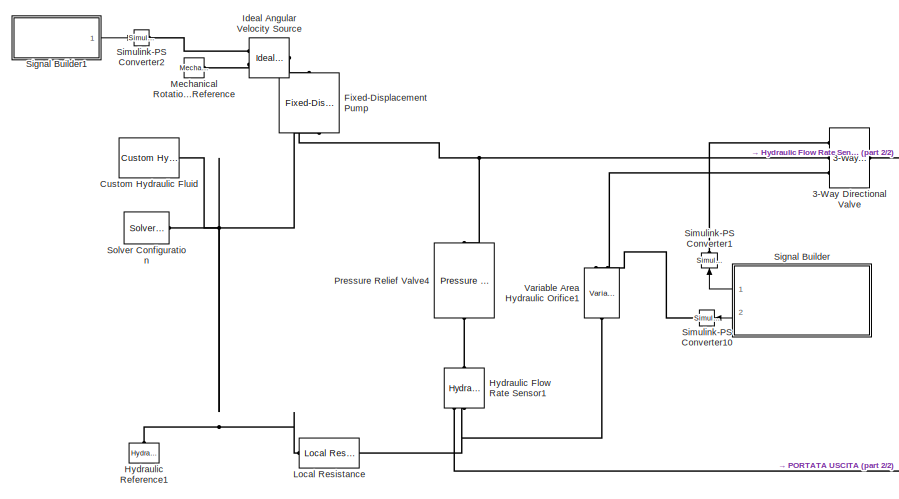
[diagram: root canvas - part 1/2, left side, full height]
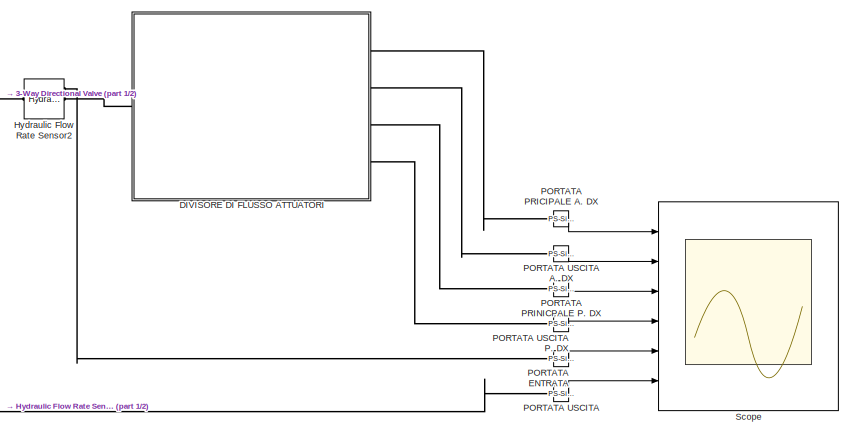
[diagram: root canvas - part 2/2, right side, full height]
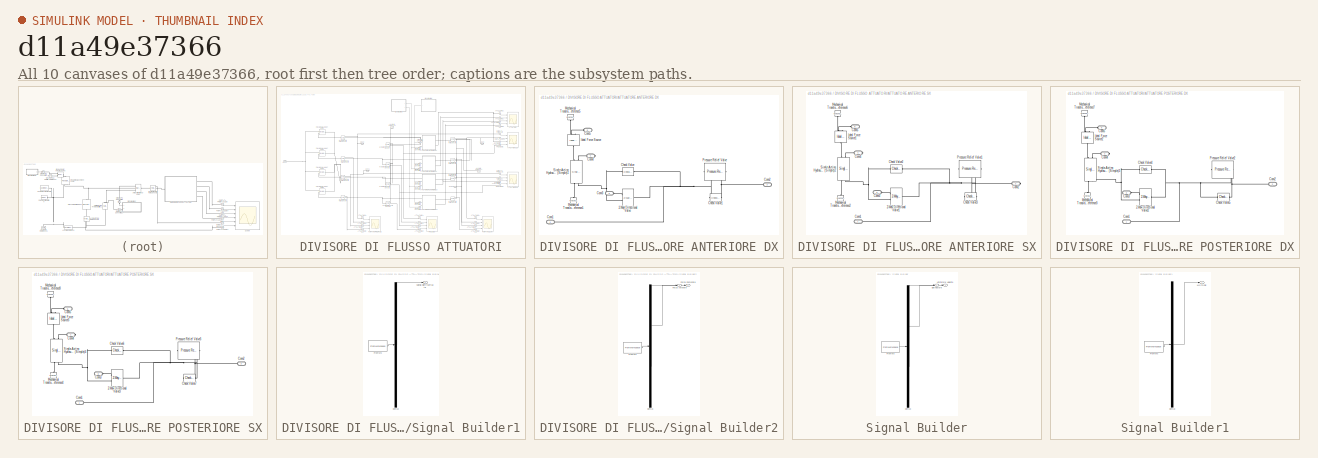
[diagram: thumbnail index - all 10 canvases of the model, root first then tree order]
MODEL slx_d11a49e37366
KIND model
CONFIG AbsTol = auto
CONFIG EnableMultiTasking = off
CONFIG FixedStep = auto
CONFIG MaxStep = auto
CONFIG MinStep = auto
CONFIG RelTol = 1e-3
CONFIG SampleTimeConstraint = Unconstrained
CONFIG Solver = VariableStepAuto
CONFIG SolverName = VariableStepAuto
CONFIG StartTime = 0.0
CONFIG StopTime = 100.0
BLOCK [Reference] 3-Way Directional Valve  REF=sh_lib/Valves/Directional Valves/3-Way Directional
Valve
  Ports = [0, 0, 0, 0, 0, 1, 3]
  SourceBlock = sh_lib/Valves/Directional Valves/3-Way Directional\nValve
  SourceProductBaseCode = SH
  SourceProductName = Simscape Fluids
  SourceType = 3-Way Directional\nValve
BLOCK [Reference] Custom Hydraulic Fluid  REF=fl_lib/Hydraulic/Hydraulic Utilities/Custom Hydraulic
Fluid
  Ports = [0, 0, 0, 0, 0, 0, 1]
  SourceBlock = fl_lib/Hydraulic/Hydraulic Utilities/Custom Hydraulic\nFluid
  SourceProductName = Foundation Library
  SourceType = Custom Hydraulic\nFluid
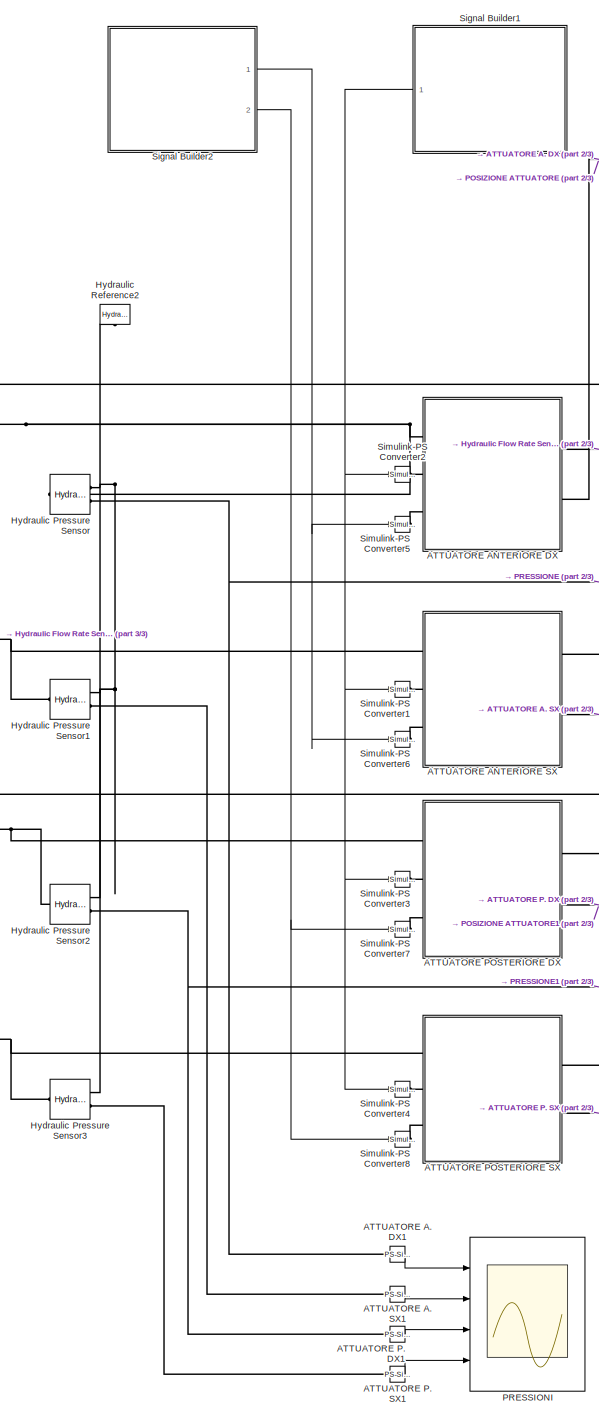
[diagram: DIVISORE DI FLUSSO ATTUATORI - part 1/3, center side, full height]
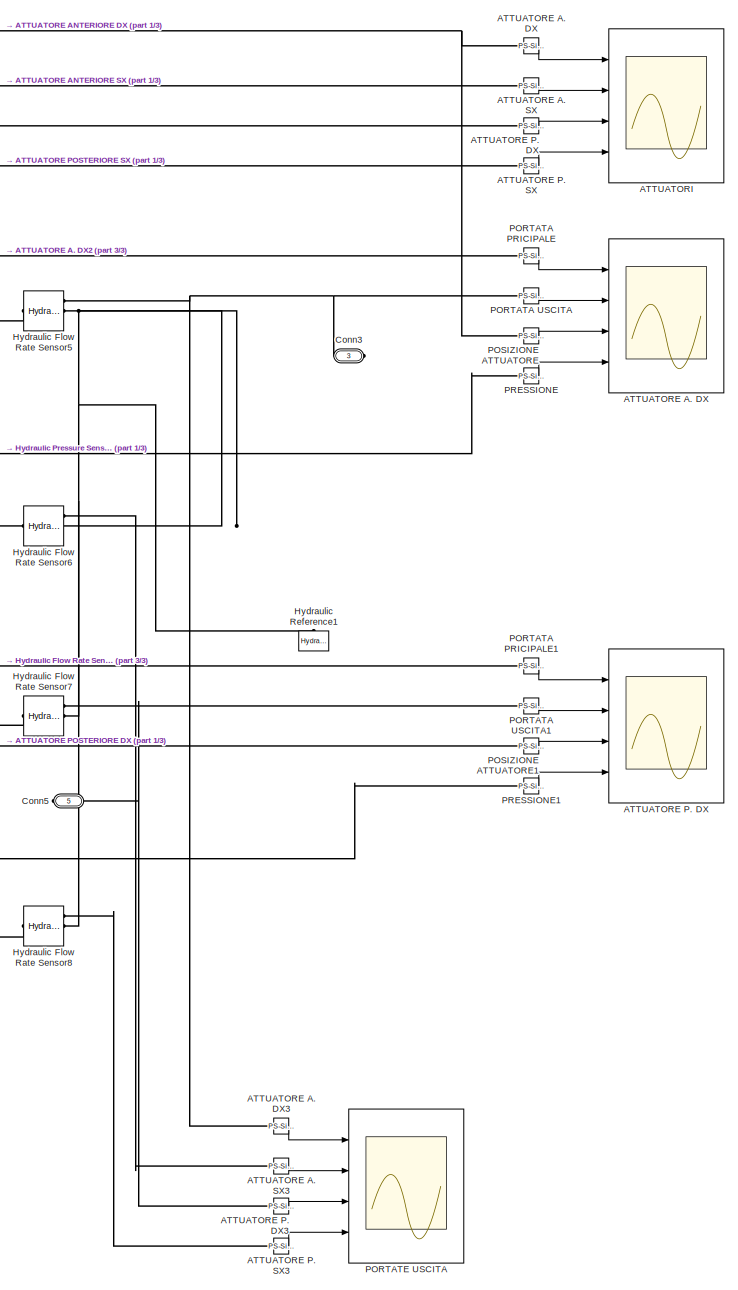
[diagram: DIVISORE DI FLUSSO ATTUATORI - part 2/3, right side, full height]
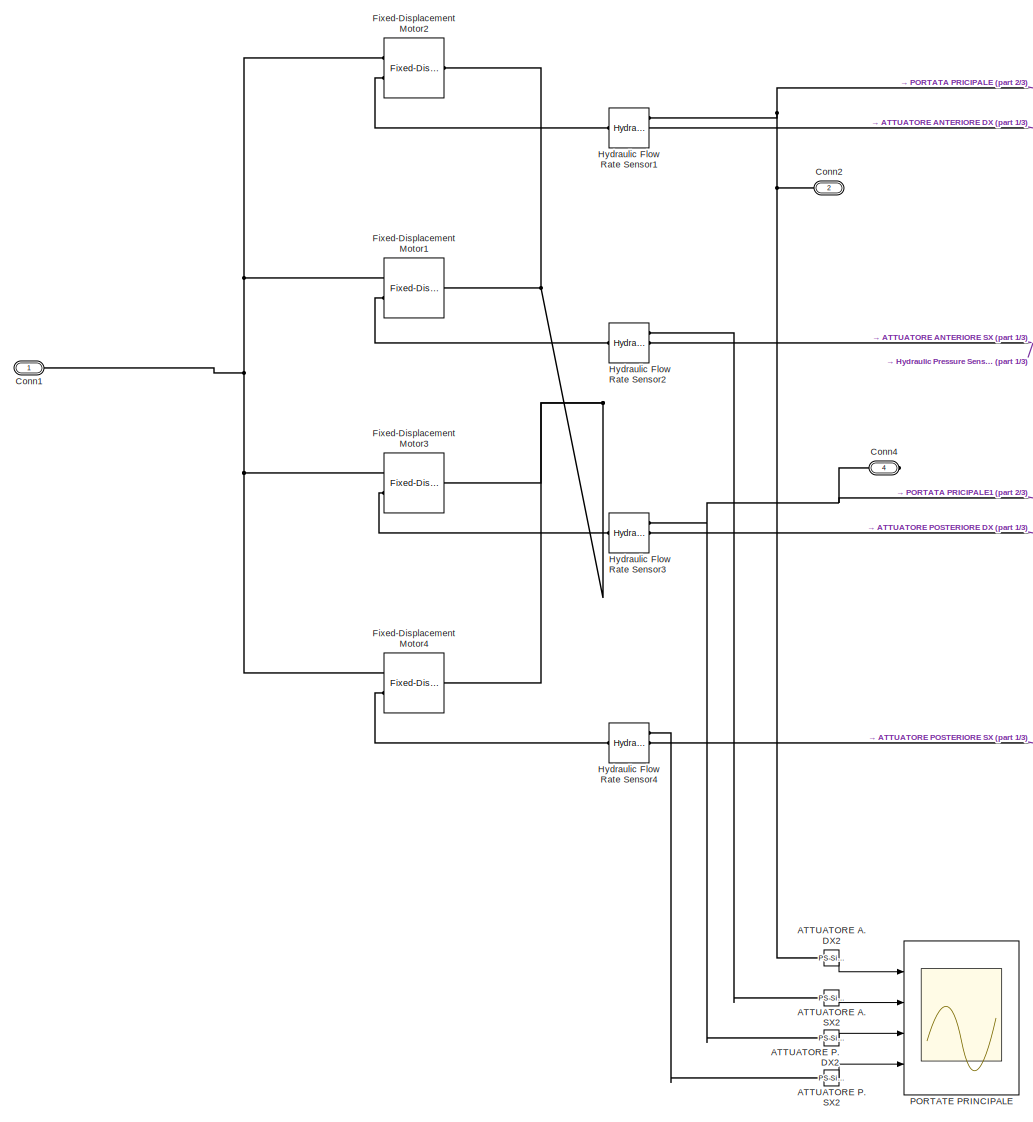
[diagram: DIVISORE DI FLUSSO ATTUATORI - part 3/3, left side, full height]
BLOCK [SubSystem] DIVISORE DI FLUSSO ATTUATORI
  Ports = [0, 0, 0, 0, 0, 1, 4]
  RequestExecContextInheritance = off
BLOCK [Reference] DIVISORE DI FLUSSO ATTUATORI/ATTUATORE A. DX  REF=nesl_utility/PS-Simulink
Converter
  Ports = [0, 1, 0, 0, 0, 1]
  SourceBlock = nesl_utility/PS-Simulink\nConverter
  SourceProductBaseCode = SS
  SourceProductName = Simscape
  SourceType = PS-Simulink\nConverter
BLOCK [Scope] DIVISORE DI FLUSSO ATTUATORI/ATTUATORE A. DX 
  Floating = off
  NumInputPorts = 4
  Ports = [4]
  ScopeSpecificationString = Simulink.scopes.TimeScopeBlockCfg('CurrentConfiguration', extmgr.ConfigurationSet(extmgr.Configuration('Core','General UI',true,'FigureColor',[1 1 1]),extmgr.Configuration('Core','Source UI',true),extmgr.Configuration('Sources','WiredSimulink',true,'DataLoggingVariableName','ScopeData4'),extmgr.Configuration('Visuals','Time Domain',true,'SerializedDisplays',{struct('MinYLimReal','-0.04805','MaxYLi...<+4418ch>
BLOCK [Reference] DIVISORE DI FLUSSO ATTUATORI/ATTUATORE A. DX1  REF=nesl_utility/PS-Simulink
Converter
  Ports = [0, 1, 0, 0, 0, 1]
  SourceBlock = nesl_utility/PS-Simulink\nConverter
  SourceProductBaseCode = SS
  SourceProductName = Simscape
  SourceType = PS-Simulink\nConverter
BLOCK [Reference] DIVISORE DI FLUSSO ATTUATORI/ATTUATORE A. DX2  REF=nesl_utility/PS-Simulink
Converter
  Ports = [0, 1, 0, 0, 0, 1]
  SourceBlock = nesl_utility/PS-Simulink\nConverter
  SourceProductBaseCode = SS
  SourceProductName = Simscape
  SourceType = PS-Simulink\nConverter
BLOCK [Reference] DIVISORE DI FLUSSO ATTUATORI/ATTUATORE A. DX3  REF=nesl_utility/PS-Simulink
Converter
  Ports = [0, 1, 0, 0, 0, 1]
  SourceBlock = nesl_utility/PS-Simulink\nConverter
  SourceProductBaseCode = SS
  SourceProductName = Simscape
  SourceType = PS-Simulink\nConverter
BLOCK [Reference] DIVISORE DI FLUSSO ATTUATORI/ATTUATORE A. SX  REF=nesl_utility/PS-Simulink
Converter
  Ports = [0, 1, 0, 0, 0, 1]
  SourceBlock = nesl_utility/PS-Simulink\nConverter
  SourceProductBaseCode = SS
  SourceProductName = Simscape
  SourceType = PS-Simulink\nConverter
BLOCK [Reference] DIVISORE DI FLUSSO ATTUATORI/ATTUATORE A. SX1  REF=nesl_utility/PS-Simulink
Converter
  Ports = [0, 1, 0, 0, 0, 1]
  SourceBlock = nesl_utility/PS-Simulink\nConverter
  SourceProductBaseCode = SS
  SourceProductName = Simscape
  SourceType = PS-Simulink\nConverter
BLOCK [Reference] DIVISORE DI FLUSSO ATTUATORI/ATTUATORE A. SX2  REF=nesl_utility/PS-Simulink
Converter
  Ports = [0, 1, 0, 0, 0, 1]
  SourceBlock = nesl_utility/PS-Simulink\nConverter
  SourceProductBaseCode = SS
  SourceProductName = Simscape
  SourceType = PS-Simulink\nConverter
BLOCK [Reference] DIVISORE DI FLUSSO ATTUATORI/ATTUATORE A. SX3  REF=nesl_utility/PS-Simulink
Converter
  Ports = [0, 1, 0, 0, 0, 1]
  SourceBlock = nesl_utility/PS-Simulink\nConverter
  SourceProductBaseCode = SS
  SourceProductName = Simscape
  SourceType = PS-Simulink\nConverter
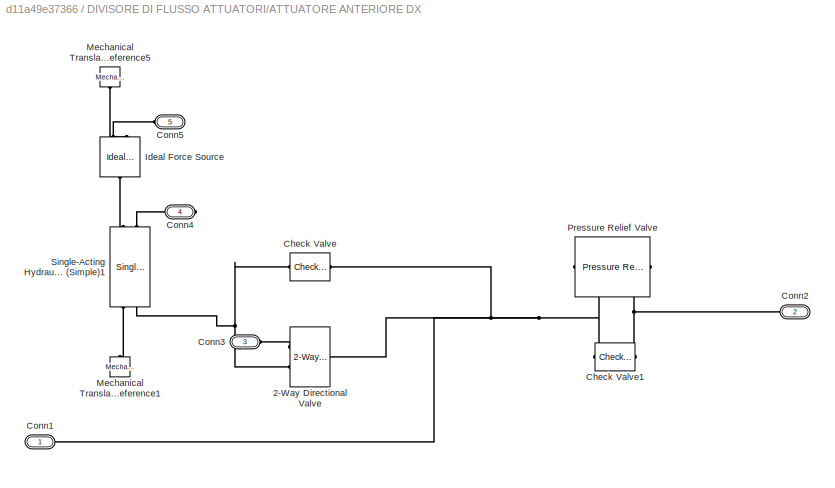
BLOCK [SubSystem] DIVISORE DI FLUSSO ATTUATORI/ATTUATORE ANTERIORE DX
  Ports = [0, 0, 0, 0, 0, 3, 2]
  RequestExecContextInheritance = off
BLOCK [Reference] DIVISORE DI FLUSSO ATTUATORI/ATTUATORE ANTERIORE DX/2-Way Directional Valve  REF=sh_lib/Valves/Directional Valves/2-Way Directional
Valve
  Ports = [0, 0, 0, 0, 0, 2, 1]
  SourceBlock = sh_lib/Valves/Directional Valves/2-Way Directional\nValve
  SourceProductBaseCode = SH
  SourceProductName = Simscape Fluids
  SourceType = 2-Way Directional\nValve
BLOCK [Reference] DIVISORE DI FLUSSO ATTUATORI/ATTUATORE ANTERIORE DX/Check Valve  REF=sh_lib/Valves/Directional Valves/Check Valve
  Ports = [0, 0, 0, 0, 0, 1, 1]
  SourceBlock = sh_lib/Valves/Directional Valves/Check Valve
  SourceProductBaseCode = SH
  SourceProductName = Simscape Fluids
  SourceType = Check Valve
BLOCK [Reference] DIVISORE DI FLUSSO ATTUATORI/ATTUATORE ANTERIORE DX/Check Valve1  REF=sh_lib/Valves/Directional Valves/Check Valve
  Ports = [0, 0, 0, 0, 0, 1, 1]
  SourceBlock = sh_lib/Valves/Directional Valves/Check Valve
  SourceProductBaseCode = SH
  SourceProductName = Simscape Fluids
  SourceType = Check Valve
BLOCK [PMIOPort] DIVISORE DI FLUSSO ATTUATORI/ATTUATORE ANTERIORE DX/Conn1
  Side = Left
BLOCK [PMIOPort] DIVISORE DI FLUSSO ATTUATORI/ATTUATORE ANTERIORE DX/Conn2
  Port = 2
  Side = Right
BLOCK [PMIOPort] DIVISORE DI FLUSSO ATTUATORI/ATTUATORE ANTERIORE DX/Conn3
  Port = 3
  Side = Left
BLOCK [PMIOPort] DIVISORE DI FLUSSO ATTUATORI/ATTUATORE ANTERIORE DX/Conn4
  Port = 4
  Side = Right
BLOCK [PMIOPort] DIVISORE DI FLUSSO ATTUATORI/ATTUATORE ANTERIORE DX/Conn5
  Port = 5
  Side = Left
BLOCK [Reference] DIVISORE DI FLUSSO ATTUATORI/ATTUATORE ANTERIORE DX/Ideal Force Source  REF=fl_lib/Mechanical/Mechanical Sources/Ideal Force Source
  Ports = [0, 0, 0, 0, 0, 1, 2]
  SourceBlock = fl_lib/Mechanical/Mechanical Sources/Ideal Force Source
  SourceProductBaseCode = SS
  SourceProductName = Simscape
  SourceType = Ideal Force Source
BLOCK [Reference] DIVISORE DI FLUSSO ATTUATORI/ATTUATORE ANTERIORE DX/Mechanical Translational Reference1  REF=fl_lib/Mechanical/Translational
Elements/Mechanical
Translational
Reference
  Ports = [0, 0, 0, 0, 0, 1]
  SourceBlock = fl_lib/Mechanical/Translational\nElements/Mechanical\nTranslational\nReference
  SourceProductBaseCode = SS
  SourceProductName = Simscape
  SourceType = Mechanical\nTranslational\nReference
BLOCK [Reference] DIVISORE DI FLUSSO ATTUATORI/ATTUATORE ANTERIORE DX/Mechanical Translational Reference5  REF=fl_lib/Mechanical/Translational
Elements/Mechanical
Translational
Reference
  Ports = [0, 0, 0, 0, 0, 1]
  SourceBlock = fl_lib/Mechanical/Translational\nElements/Mechanical\nTranslational\nReference
  SourceProductBaseCode = SS
  SourceProductName = Simscape
  SourceType = Mechanical\nTranslational\nReference
BLOCK [Reference] DIVISORE DI FLUSSO ATTUATORI/ATTUATORE ANTERIORE DX/Pressure Relief Valve  REF=sh_lib/Valves/Pressure Control
Valves/Pressure Relief
Valve
  Ports = [0, 0, 0, 0, 0, 1, 1]
  SourceBlock = sh_lib/Valves/Pressure Control\nValves/Pressure Relief\nValve
  SourceProductBaseCode = SH
  SourceProductName = Simscape Fluids
  SourceType = Pressure Relief\nValve
BLOCK [Reference] DIVISORE DI FLUSSO ATTUATORI/ATTUATORE ANTERIORE DX/Single-Acting Hydraulic Cylinder (Simple)1  REF=sh_lib/Hydraulic Cylinders/Single-Acting
Hydraulic Cylinder
(Simple)
  Ports = [0, 0, 0, 0, 0, 2, 2]
  SourceBlock = sh_lib/Hydraulic Cylinders/Single-Acting\nHydraulic Cylinder\n(Simple)
  SourceProductBaseCode = SH
  SourceProductName = Simscape Fluids
  SourceType = Single-Acting\nHydraulic Cylinder\n(Simple)
BLOCK [SubSystem] DIVISORE DI FLUSSO ATTUATORI/ATTUATORE ANTERIORE SX
  Ports = [0, 0, 0, 0, 0, 3, 2]
  RequestExecContextInheritance = off
BLOCK [Reference] DIVISORE DI FLUSSO ATTUATORI/ATTUATORE ANTERIORE SX/2-Way Directional Valve1  REF=sh_lib/Valves/Directional Valves/2-Way Directional
Valve
  Ports = [0, 0, 0, 0, 0, 2, 1]
  SourceBlock = sh_lib/Valves/Directional Valves/2-Way Directional\nValve
  SourceProductBaseCode = SH
  SourceProductName = Simscape Fluids
  SourceType = 2-Way Directional\nValve
BLOCK [Reference] DIVISORE DI FLUSSO ATTUATORI/ATTUATORE ANTERIORE SX/Check Valve2  REF=sh_lib/Valves/Directional Valves/Check Valve
  Ports = [0, 0, 0, 0, 0, 1, 1]
  SourceBlock = sh_lib/Valves/Directional Valves/Check Valve
  SourceProductBaseCode = SH
  SourceProductName = Simscape Fluids
  SourceType = Check Valve
BLOCK [Reference] DIVISORE DI FLUSSO ATTUATORI/ATTUATORE ANTERIORE SX/Check Valve3  REF=sh_lib/Valves/Directional Valves/Check Valve
  Ports = [0, 0, 0, 0, 0, 1, 1]
  SourceBlock = sh_lib/Valves/Directional Valves/Check Valve
  SourceProductBaseCode = SH
  SourceProductName = Simscape Fluids
  SourceType = Check Valve
BLOCK [PMIOPort] DIVISORE DI FLUSSO ATTUATORI/ATTUATORE ANTERIORE SX/Conn1
  Side = Left
BLOCK [PMIOPort] DIVISORE DI FLUSSO ATTUATORI/ATTUATORE ANTERIORE SX/Conn2
  Port = 2
  Side = Right
BLOCK [PMIOPort] DIVISORE DI FLUSSO ATTUATORI/ATTUATORE ANTERIORE SX/Conn3
  Port = 3
  Side = Left
BLOCK [PMIOPort] DIVISORE DI FLUSSO ATTUATORI/ATTUATORE ANTERIORE SX/Conn4
  Port = 4
  Side = Right
BLOCK [PMIOPort] DIVISORE DI FLUSSO ATTUATORI/ATTUATORE ANTERIORE SX/Conn5
  Port = 5
  Side = Left
BLOCK [Reference] DIVISORE DI FLUSSO ATTUATORI/ATTUATORE ANTERIORE SX/Ideal Force Source1  REF=fl_lib/Mechanical/Mechanical Sources/Ideal Force Source
  Ports = [0, 0, 0, 0, 0, 1, 2]
  SourceBlock = fl_lib/Mechanical/Mechanical Sources/Ideal Force Source
  SourceProductBaseCode = SS
  SourceProductName = Simscape
  SourceType = Ideal Force Source
BLOCK [Reference] DIVISORE DI FLUSSO ATTUATORI/ATTUATORE ANTERIORE SX/Mechanical Translational Reference2  REF=fl_lib/Mechanical/Translational
Elements/Mechanical
Translational
Reference
  Ports = [0, 0, 0, 0, 0, 1]
  SourceBlock = fl_lib/Mechanical/Translational\nElements/Mechanical\nTranslational\nReference
  SourceProductBaseCode = SS
  SourceProductName = Simscape
  SourceType = Mechanical\nTranslational\nReference
BLOCK [Reference] DIVISORE DI FLUSSO ATTUATORI/ATTUATORE ANTERIORE SX/Mechanical Translational Reference6  REF=fl_lib/Mechanical/Translational
Elements/Mechanical
Translational
Reference
  Ports = [0, 0, 0, 0, 0, 1]
  SourceBlock = fl_lib/Mechanical/Translational\nElements/Mechanical\nTranslational\nReference
  SourceProductBaseCode = SS
  SourceProductName = Simscape
  SourceType = Mechanical\nTranslational\nReference
BLOCK [Reference] DIVISORE DI FLUSSO ATTUATORI/ATTUATORE ANTERIORE SX/Pressure Relief Valve1  REF=sh_lib/Valves/Pressure Control
Valves/Pressure Relief
Valve
  Ports = [0, 0, 0, 0, 0, 1, 1]
  SourceBlock = sh_lib/Valves/Pressure Control\nValves/Pressure Relief\nValve
  SourceProductBaseCode = SH
  SourceProductName = Simscape Fluids
  SourceType = Pressure Relief\nValve
BLOCK [Reference] DIVISORE DI FLUSSO ATTUATORI/ATTUATORE ANTERIORE SX/Single-Acting Hydraulic Cylinder (Simple)2  REF=sh_lib/Hydraulic Cylinders/Single-Acting
Hydraulic Cylinder
(Simple)
  Ports = [0, 0, 0, 0, 0, 2, 2]
  SourceBlock = sh_lib/Hydraulic Cylinders/Single-Acting\nHydraulic Cylinder\n(Simple)
  SourceProductBaseCode = SH
  SourceProductName = Simscape Fluids
  SourceType = Single-Acting\nHydraulic Cylinder\n(Simple)
BLOCK [Reference] DIVISORE DI FLUSSO ATTUATORI/ATTUATORE P. DX  REF=nesl_utility/PS-Simulink
Converter
  Ports = [0, 1, 0, 0, 0, 1]
  SourceBlock = nesl_utility/PS-Simulink\nConverter
  SourceProductBaseCode = SS
  SourceProductName = Simscape
  SourceType = PS-Simulink\nConverter
BLOCK [Scope] DIVISORE DI FLUSSO ATTUATORI/ATTUATORE P. DX 
  Floating = off
  NumInputPorts = 4
  Ports = [4]
  ScopeSpecificationString = Simulink.scopes.TimeScopeBlockCfg('CurrentConfiguration', extmgr.ConfigurationSet(extmgr.Configuration('Core','General UI',true,'FigureColor',[1 1 1]),extmgr.Configuration('Core','Source UI',true),extmgr.Configuration('Sources','WiredSimulink',true,'DataLoggingVariableName','ScopeData5'),extmgr.Configuration('Visuals','Time Domain',true,'SerializedDisplays',{struct('MinYLimReal','0.000023','MaxYLi...<+4402ch>
BLOCK [Reference] DIVISORE DI FLUSSO ATTUATORI/ATTUATORE P. DX1  REF=nesl_utility/PS-Simulink
Converter
  Ports = [0, 1, 0, 0, 0, 1]
  SourceBlock = nesl_utility/PS-Simulink\nConverter
  SourceProductBaseCode = SS
  SourceProductName = Simscape
  SourceType = PS-Simulink\nConverter
BLOCK [Reference] DIVISORE DI FLUSSO ATTUATORI/ATTUATORE P. DX2  REF=nesl_utility/PS-Simulink
Converter
  Ports = [0, 1, 0, 0, 0, 1]
  SourceBlock = nesl_utility/PS-Simulink\nConverter
  SourceProductBaseCode = SS
  SourceProductName = Simscape
  SourceType = PS-Simulink\nConverter
BLOCK [Reference] DIVISORE DI FLUSSO ATTUATORI/ATTUATORE P. DX3  REF=nesl_utility/PS-Simulink
Converter
  Ports = [0, 1, 0, 0, 0, 1]
  SourceBlock = nesl_utility/PS-Simulink\nConverter
  SourceProductBaseCode = SS
  SourceProductName = Simscape
  SourceType = PS-Simulink\nConverter
BLOCK [Reference] DIVISORE DI FLUSSO ATTUATORI/ATTUATORE P. SX  REF=nesl_utility/PS-Simulink
Converter
  Ports = [0, 1, 0, 0, 0, 1]
  SourceBlock = nesl_utility/PS-Simulink\nConverter
  SourceProductBaseCode = SS
  SourceProductName = Simscape
  SourceType = PS-Simulink\nConverter
BLOCK [Reference] DIVISORE DI FLUSSO ATTUATORI/ATTUATORE P. SX1  REF=nesl_utility/PS-Simulink
Converter
  Ports = [0, 1, 0, 0, 0, 1]
  SourceBlock = nesl_utility/PS-Simulink\nConverter
  SourceProductBaseCode = SS
  SourceProductName = Simscape
  SourceType = PS-Simulink\nConverter
BLOCK [Reference] DIVISORE DI FLUSSO ATTUATORI/ATTUATORE P. SX2  REF=nesl_utility/PS-Simulink
Converter
  Ports = [0, 1, 0, 0, 0, 1]
  SourceBlock = nesl_utility/PS-Simulink\nConverter
  SourceProductBaseCode = SS
  SourceProductName = Simscape
  SourceType = PS-Simulink\nConverter
BLOCK [Reference] DIVISORE DI FLUSSO ATTUATORI/ATTUATORE P. SX3  REF=nesl_utility/PS-Simulink
Converter
  Ports = [0, 1, 0, 0, 0, 1]
  SourceBlock = nesl_utility/PS-Simulink\nConverter
  SourceProductBaseCode = SS
  SourceProductName = Simscape
  SourceType = PS-Simulink\nConverter
BLOCK [SubSystem] DIVISORE DI FLUSSO ATTUATORI/ATTUATORE POSTERIORE DX
  Ports = [0, 0, 0, 0, 0, 3, 2]
  RequestExecContextInheritance = off
BLOCK [Reference] DIVISORE DI FLUSSO ATTUATORI/ATTUATORE POSTERIORE DX/2-Way Directional Valve2  REF=sh_lib/Valves/Directional Valves/2-Way Directional
Valve
  Ports = [0, 0, 0, 0, 0, 2, 1]
  SourceBlock = sh_lib/Valves/Directional Valves/2-Way Directional\nValve
  SourceProductBaseCode = SH
  SourceProductName = Simscape Fluids
  SourceType = 2-Way Directional\nValve
BLOCK [Reference] DIVISORE DI FLUSSO ATTUATORI/ATTUATORE POSTERIORE DX/Check Valve4  REF=sh_lib/Valves/Directional Valves/Check Valve
  Ports = [0, 0, 0, 0, 0, 1, 1]
  SourceBlock = sh_lib/Valves/Directional Valves/Check Valve
  SourceProductBaseCode = SH
  SourceProductName = Simscape Fluids
  SourceType = Check Valve
BLOCK [Reference] DIVISORE DI FLUSSO ATTUATORI/ATTUATORE POSTERIORE DX/Check Valve5  REF=sh_lib/Valves/Directional Valves/Check Valve
  Ports = [0, 0, 0, 0, 0, 1, 1]
  SourceBlock = sh_lib/Valves/Directional Valves/Check Valve
  SourceProductBaseCode = SH
  SourceProductName = Simscape Fluids
  SourceType = Check Valve
BLOCK [PMIOPort] DIVISORE DI FLUSSO ATTUATORI/ATTUATORE POSTERIORE DX/Conn1
  Side = Left
BLOCK [PMIOPort] DIVISORE DI FLUSSO ATTUATORI/ATTUATORE POSTERIORE DX/Conn2
  Port = 2
  Side = Right
BLOCK [PMIOPort] DIVISORE DI FLUSSO ATTUATORI/ATTUATORE POSTERIORE DX/Conn3
  Port = 3
  Side = Left
BLOCK [PMIOPort] DIVISORE DI FLUSSO ATTUATORI/ATTUATORE POSTERIORE DX/Conn4
  Port = 4
  Side = Right
BLOCK [PMIOPort] DIVISORE DI FLUSSO ATTUATORI/ATTUATORE POSTERIORE DX/Conn5
  Port = 5
  Side = Left
BLOCK [Reference] DIVISORE DI FLUSSO ATTUATORI/ATTUATORE POSTERIORE DX/Ideal Force Source2  REF=fl_lib/Mechanical/Mechanical Sources/Ideal Force Source
  Ports = [0, 0, 0, 0, 0, 1, 2]
  SourceBlock = fl_lib/Mechanical/Mechanical Sources/Ideal Force Source
  SourceProductBaseCode = SS
  SourceProductName = Simscape
  SourceType = Ideal Force Source
BLOCK [Reference] DIVISORE DI FLUSSO ATTUATORI/ATTUATORE POSTERIORE DX/Mechanical Translational Reference3  REF=fl_lib/Mechanical/Translational
Elements/Mechanical
Translational
Reference
  Ports = [0, 0, 0, 0, 0, 1]
  SourceBlock = fl_lib/Mechanical/Translational\nElements/Mechanical\nTranslational\nReference
  SourceProductBaseCode = SS
  SourceProductName = Simscape
  SourceType = Mechanical\nTranslational\nReference
BLOCK [Reference] DIVISORE DI FLUSSO ATTUATORI/ATTUATORE POSTERIORE DX/Mechanical Translational Reference7  REF=fl_lib/Mechanical/Translational
Elements/Mechanical
Translational
Reference
  Ports = [0, 0, 0, 0, 0, 1]
  SourceBlock = fl_lib/Mechanical/Translational\nElements/Mechanical\nTranslational\nReference
  SourceProductBaseCode = SS
  SourceProductName = Simscape
  SourceType = Mechanical\nTranslational\nReference
BLOCK [Reference] DIVISORE DI FLUSSO ATTUATORI/ATTUATORE POSTERIORE DX/Pressure Relief Valve2  REF=sh_lib/Valves/Pressure Control
Valves/Pressure Relief
Valve
  Ports = [0, 0, 0, 0, 0, 1, 1]
  SourceBlock = sh_lib/Valves/Pressure Control\nValves/Pressure Relief\nValve
  SourceProductBaseCode = SH
  SourceProductName = Simscape Fluids
  SourceType = Pressure Relief\nValve
BLOCK [Reference] DIVISORE DI FLUSSO ATTUATORI/ATTUATORE POSTERIORE DX/Single-Acting Hydraulic Cylinder (Simple)3  REF=sh_lib/Hydraulic Cylinders/Single-Acting
Hydraulic Cylinder
(Simple)
  Ports = [0, 0, 0, 0, 0, 2, 2]
  SourceBlock = sh_lib/Hydraulic Cylinders/Single-Acting\nHydraulic Cylinder\n(Simple)
  SourceProductBaseCode = SH
  SourceProductName = Simscape Fluids
  SourceType = Single-Acting\nHydraulic Cylinder\n(Simple)
BLOCK [SubSystem] DIVISORE DI FLUSSO ATTUATORI/ATTUATORE POSTERIORE SX
  Ports = [0, 0, 0, 0, 0, 3, 2]
  RequestExecContextInheritance = off
BLOCK [Reference] DIVISORE DI FLUSSO ATTUATORI/ATTUATORE POSTERIORE SX/2-Way Directional Valve3  REF=sh_lib/Valves/Directional Valves/2-Way Directional
Valve
  Ports = [0, 0, 0, 0, 0, 2, 1]
  SourceBlock = sh_lib/Valves/Directional Valves/2-Way Directional\nValve
  SourceProductBaseCode = SH
  SourceProductName = Simscape Fluids
  SourceType = 2-Way Directional\nValve
BLOCK [Reference] DIVISORE DI FLUSSO ATTUATORI/ATTUATORE POSTERIORE SX/Check Valve6  REF=sh_lib/Valves/Directional Valves/Check Valve
  Ports = [0, 0, 0, 0, 0, 1, 1]
  SourceBlock = sh_lib/Valves/Directional Valves/Check Valve
  SourceProductBaseCode = SH
  SourceProductName = Simscape Fluids
  SourceType = Check Valve
BLOCK [Reference] DIVISORE DI FLUSSO ATTUATORI/ATTUATORE POSTERIORE SX/Check Valve7  REF=sh_lib/Valves/Directional Valves/Check Valve
  Ports = [0, 0, 0, 0, 0, 1, 1]
  SourceBlock = sh_lib/Valves/Directional Valves/Check Valve
  SourceProductBaseCode = SH
  SourceProductName = Simscape Fluids
  SourceType = Check Valve
BLOCK [PMIOPort] DIVISORE DI FLUSSO ATTUATORI/ATTUATORE POSTERIORE SX/Conn1
  Side = Left
BLOCK [PMIOPort] DIVISORE DI FLUSSO ATTUATORI/ATTUATORE POSTERIORE SX/Conn2
  Port = 2
  Side = Right
BLOCK [PMIOPort] DIVISORE DI FLUSSO ATTUATORI/ATTUATORE POSTERIORE SX/Conn3
  Port = 3
  Side = Left
BLOCK [PMIOPort] DIVISORE DI FLUSSO ATTUATORI/ATTUATORE POSTERIORE SX/Conn4
  Port = 4
  Side = Right
BLOCK [PMIOPort] DIVISORE DI FLUSSO ATTUATORI/ATTUATORE POSTERIORE SX/Conn5
  Port = 5
  Side = Left
BLOCK [Reference] DIVISORE DI FLUSSO ATTUATORI/ATTUATORE POSTERIORE SX/Ideal Force Source3  REF=fl_lib/Mechanical/Mechanical Sources/Ideal Force Source
  Ports = [0, 0, 0, 0, 0, 1, 2]
  SourceBlock = fl_lib/Mechanical/Mechanical Sources/Ideal Force Source
  SourceProductBaseCode = SS
  SourceProductName = Simscape
  SourceType = Ideal Force Source
BLOCK [Reference] DIVISORE DI FLUSSO ATTUATORI/ATTUATORE POSTERIORE SX/Mechanical Translational Reference4  REF=fl_lib/Mechanical/Translational
Elements/Mechanical
Translational
Reference
  Ports = [0, 0, 0, 0, 0, 1]
  SourceBlock = fl_lib/Mechanical/Translational\nElements/Mechanical\nTranslational\nReference
  SourceProductBaseCode = SS
  SourceProductName = Simscape
  SourceType = Mechanical\nTranslational\nReference
BLOCK [Reference] DIVISORE DI FLUSSO ATTUATORI/ATTUATORE POSTERIORE SX/Mechanical Translational Reference8  REF=fl_lib/Mechanical/Translational
Elements/Mechanical
Translational
Reference
  Ports = [0, 0, 0, 0, 0, 1]
  SourceBlock = fl_lib/Mechanical/Translational\nElements/Mechanical\nTranslational\nReference
  SourceProductBaseCode = SS
  SourceProductName = Simscape
  SourceType = Mechanical\nTranslational\nReference
BLOCK [Reference] DIVISORE DI FLUSSO ATTUATORI/ATTUATORE POSTERIORE SX/Pressure Relief Valve3  REF=sh_lib/Valves/Pressure Control
Valves/Pressure Relief
Valve
  Ports = [0, 0, 0, 0, 0, 1, 1]
  SourceBlock = sh_lib/Valves/Pressure Control\nValves/Pressure Relief\nValve
  SourceProductBaseCode = SH
  SourceProductName = Simscape Fluids
  SourceType = Pressure Relief\nValve
BLOCK [Reference] DIVISORE DI FLUSSO ATTUATORI/ATTUATORE POSTERIORE SX/Single-Acting Hydraulic Cylinder (Simple)4  REF=sh_lib/Hydraulic Cylinders/Single-Acting
Hydraulic Cylinder
(Simple)
  Ports = [0, 0, 0, 0, 0, 2, 2]
  SourceBlock = sh_lib/Hydraulic Cylinders/Single-Acting\nHydraulic Cylinder\n(Simple)
  SourceProductBaseCode = SH
  SourceProductName = Simscape Fluids
  SourceType = Single-Acting\nHydraulic Cylinder\n(Simple)
BLOCK [Scope] DIVISORE DI FLUSSO ATTUATORI/ATTUATORI
  Floating = off
  NumInputPorts = 4
  Ports = [4]
  ScopeSpecificationString = Simulink.scopes.TimeScopeBlockCfg('CurrentConfiguration', extmgr.ConfigurationSet(extmgr.Configuration('Core','General UI',true,'FigureColor',[1 1 1]),extmgr.Configuration('Core','Source UI',true),extmgr.Configuration('Sources','WiredSimulink',true),extmgr.Configuration('Visuals','Time Domain',true,'SerializedDisplays',{struct('MinYLimReal','-0.12562','MaxYLimReal','1.12523','YLabelReal','','MinYL...<+4343ch>
BLOCK [PMIOPort] DIVISORE DI FLUSSO ATTUATORI/Conn1
  Side = Left
BLOCK [PMIOPort] DIVISORE DI FLUSSO ATTUATORI/Conn2
  Port = 2
  Side = Right
BLOCK [PMIOPort] DIVISORE DI FLUSSO ATTUATORI/Conn3
  Port = 3
  Side = Right
BLOCK [PMIOPort] DIVISORE DI FLUSSO ATTUATORI/Conn4
  Port = 4
  Side = Right
BLOCK [PMIOPort] DIVISORE DI FLUSSO ATTUATORI/Conn5
  Port = 5
  Side = Right
BLOCK [Reference] DIVISORE DI FLUSSO ATTUATORI/Fixed-Displacement Motor1  REF=sh_lib/Pumps and Motors/Fixed-Displacement
Motor
  Ports = [0, 0, 0, 0, 0, 2, 1]
  SourceBlock = sh_lib/Pumps and Motors/Fixed-Displacement\nMotor
  SourceProductBaseCode = SH
  SourceProductName = Simscape Fluids
  SourceType = Fixed-Displacement\nMotor
BLOCK [Reference] DIVISORE DI FLUSSO ATTUATORI/Fixed-Displacement Motor2  REF=sh_lib/Pumps and Motors/Fixed-Displacement
Motor
  Ports = [0, 0, 0, 0, 0, 2, 1]
  SourceBlock = sh_lib/Pumps and Motors/Fixed-Displacement\nMotor
  SourceProductBaseCode = SH
  SourceProductName = Simscape Fluids
  SourceType = Fixed-Displacement\nMotor
BLOCK [Reference] DIVISORE DI FLUSSO ATTUATORI/Fixed-Displacement Motor3  REF=sh_lib/Pumps and Motors/Fixed-Displacement
Motor
  Ports = [0, 0, 0, 0, 0, 2, 1]
  SourceBlock = sh_lib/Pumps and Motors/Fixed-Displacement\nMotor
  SourceProductBaseCode = SH
  SourceProductName = Simscape Fluids
  SourceType = Fixed-Displacement\nMotor
BLOCK [Reference] DIVISORE DI FLUSSO ATTUATORI/Fixed-Displacement Motor4  REF=sh_lib/Pumps and Motors/Fixed-Displacement
Motor
  Ports = [0, 0, 0, 0, 0, 2, 1]
  SourceBlock = sh_lib/Pumps and Motors/Fixed-Displacement\nMotor
  SourceProductBaseCode = SH
  SourceProductName = Simscape Fluids
  SourceType = Fixed-Displacement\nMotor
BLOCK [Reference] DIVISORE DI FLUSSO ATTUATORI/Hydraulic Flow Rate Sensor1  REF=fl_lib/Hydraulic/Hydraulic Sensors/Hydraulic Flow Rate
Sensor
  Ports = [0, 0, 0, 0, 0, 1, 3]
  SourceBlock = fl_lib/Hydraulic/Hydraulic Sensors/Hydraulic Flow Rate\nSensor
  SourceProductBaseCode = SS
  SourceProductName = Simscape
  SourceType = Hydraulic Flow Rate\nSensor
BLOCK [Reference] DIVISORE DI FLUSSO ATTUATORI/Hydraulic Flow Rate Sensor2  REF=fl_lib/Hydraulic/Hydraulic Sensors/Hydraulic Flow Rate
Sensor
  Ports = [0, 0, 0, 0, 0, 1, 3]
  SourceBlock = fl_lib/Hydraulic/Hydraulic Sensors/Hydraulic Flow Rate\nSensor
  SourceProductBaseCode = SS
  SourceProductName = Simscape
  SourceType = Hydraulic Flow Rate\nSensor
BLOCK [Reference] DIVISORE DI FLUSSO ATTUATORI/Hydraulic Flow Rate Sensor3  REF=fl_lib/Hydraulic/Hydraulic Sensors/Hydraulic Flow Rate
Sensor
  Ports = [0, 0, 0, 0, 0, 1, 3]
  SourceBlock = fl_lib/Hydraulic/Hydraulic Sensors/Hydraulic Flow Rate\nSensor
  SourceProductBaseCode = SS
  SourceProductName = Simscape
  SourceType = Hydraulic Flow Rate\nSensor
BLOCK [Reference] DIVISORE DI FLUSSO ATTUATORI/Hydraulic Flow Rate Sensor4  REF=fl_lib/Hydraulic/Hydraulic Sensors/Hydraulic Flow Rate
Sensor
  Ports = [0, 0, 0, 0, 0, 1, 3]
  SourceBlock = fl_lib/Hydraulic/Hydraulic Sensors/Hydraulic Flow Rate\nSensor
  SourceProductBaseCode = SS
  SourceProductName = Simscape
  SourceType = Hydraulic Flow Rate\nSensor
BLOCK [Reference] DIVISORE DI FLUSSO ATTUATORI/Hydraulic Flow Rate Sensor5  REF=fl_lib/Hydraulic/Hydraulic Sensors/Hydraulic Flow Rate
Sensor
  Ports = [0, 0, 0, 0, 0, 1, 3]
  SourceBlock = fl_lib/Hydraulic/Hydraulic Sensors/Hydraulic Flow Rate\nSensor
  SourceProductBaseCode = SS
  SourceProductName = Simscape
  SourceType = Hydraulic Flow Rate\nSensor
BLOCK [Reference] DIVISORE DI FLUSSO ATTUATORI/Hydraulic Flow Rate Sensor6  REF=fl_lib/Hydraulic/Hydraulic Sensors/Hydraulic Flow Rate
Sensor
  Ports = [0, 0, 0, 0, 0, 1, 3]
  SourceBlock = fl_lib/Hydraulic/Hydraulic Sensors/Hydraulic Flow Rate\nSensor
  SourceProductBaseCode = SS
  SourceProductName = Simscape
  SourceType = Hydraulic Flow Rate\nSensor
BLOCK [Reference] DIVISORE DI FLUSSO ATTUATORI/Hydraulic Flow Rate Sensor7  REF=fl_lib/Hydraulic/Hydraulic Sensors/Hydraulic Flow Rate
Sensor
  Ports = [0, 0, 0, 0, 0, 1, 3]
  SourceBlock = fl_lib/Hydraulic/Hydraulic Sensors/Hydraulic Flow Rate\nSensor
  SourceProductBaseCode = SS
  SourceProductName = Simscape
  SourceType = Hydraulic Flow Rate\nSensor
BLOCK [Reference] DIVISORE DI FLUSSO ATTUATORI/Hydraulic Flow Rate Sensor8  REF=fl_lib/Hydraulic/Hydraulic Sensors/Hydraulic Flow Rate
Sensor
  Ports = [0, 0, 0, 0, 0, 1, 3]
  SourceBlock = fl_lib/Hydraulic/Hydraulic Sensors/Hydraulic Flow Rate\nSensor
  SourceProductBaseCode = SS
  SourceProductName = Simscape
  SourceType = Hydraulic Flow Rate\nSensor
BLOCK [Reference] DIVISORE DI FLUSSO ATTUATORI/Hydraulic Pressure Sensor  REF=fl_lib/Hydraulic/Hydraulic Sensors/Hydraulic Pressure
Sensor
  Ports = [0, 0, 0, 0, 0, 1, 2]
  SourceBlock = fl_lib/Hydraulic/Hydraulic Sensors/Hydraulic Pressure\nSensor
  SourceProductBaseCode = SS
  SourceProductName = Simscape
  SourceType = Hydraulic Pressure\nSensor
BLOCK [Reference] DIVISORE DI FLUSSO ATTUATORI/Hydraulic Pressure Sensor1  REF=fl_lib/Hydraulic/Hydraulic Sensors/Hydraulic Pressure
Sensor
  Ports = [0, 0, 0, 0, 0, 1, 2]
  SourceBlock = fl_lib/Hydraulic/Hydraulic Sensors/Hydraulic Pressure\nSensor
  SourceProductBaseCode = SS
  SourceProductName = Simscape
  SourceType = Hydraulic Pressure\nSensor
BLOCK [Reference] DIVISORE DI FLUSSO ATTUATORI/Hydraulic Pressure Sensor2  REF=fl_lib/Hydraulic/Hydraulic Sensors/Hydraulic Pressure
Sensor
  Ports = [0, 0, 0, 0, 0, 1, 2]
  SourceBlock = fl_lib/Hydraulic/Hydraulic Sensors/Hydraulic Pressure\nSensor
  SourceProductBaseCode = SS
  SourceProductName = Simscape
  SourceType = Hydraulic Pressure\nSensor
BLOCK [Reference] DIVISORE DI FLUSSO ATTUATORI/Hydraulic Pressure Sensor3  REF=fl_lib/Hydraulic/Hydraulic Sensors/Hydraulic Pressure
Sensor
  Ports = [0, 0, 0, 0, 0, 1, 2]
  SourceBlock = fl_lib/Hydraulic/Hydraulic Sensors/Hydraulic Pressure\nSensor
  SourceProductBaseCode = SS
  SourceProductName = Simscape
  SourceType = Hydraulic Pressure\nSensor
BLOCK [Reference] DIVISORE DI FLUSSO ATTUATORI/Hydraulic Reference1  REF=fl_lib/Hydraulic/Hydraulic Elements/Hydraulic Reference
  Ports = [0, 0, 0, 0, 0, 1]
  SourceBlock = fl_lib/Hydraulic/Hydraulic Elements/Hydraulic Reference
  SourceProductName = Foundation Library
  SourceType = Hydraulic Reference
BLOCK [Reference] DIVISORE DI FLUSSO ATTUATORI/Hydraulic Reference2  REF=fl_lib/Hydraulic/Hydraulic Elements/Hydraulic Reference
  Ports = [0, 0, 0, 0, 0, 1]
  SourceBlock = fl_lib/Hydraulic/Hydraulic Elements/Hydraulic Reference
  SourceProductName = Foundation Library
  SourceType = Hydraulic Reference
BLOCK [Reference] DIVISORE DI FLUSSO ATTUATORI/PORTATA PRICIPALE  REF=nesl_utility/PS-Simulink
Converter
  Ports = [0, 1, 0, 0, 0, 1]
  SourceBlock = nesl_utility/PS-Simulink\nConverter
  SourceProductBaseCode = SS
  SourceProductName = Simscape
  SourceType = PS-Simulink\nConverter
BLOCK [Reference] DIVISORE DI FLUSSO ATTUATORI/PORTATA PRICIPALE1  REF=nesl_utility/PS-Simulink
Converter
  Ports = [0, 1, 0, 0, 0, 1]
  SourceBlock = nesl_utility/PS-Simulink\nConverter
  SourceProductBaseCode = SS
  SourceProductName = Simscape
  SourceType = PS-Simulink\nConverter
BLOCK [Reference] DIVISORE DI FLUSSO ATTUATORI/PORTATA USCITA  REF=nesl_utility/PS-Simulink
Converter
  Ports = [0, 1, 0, 0, 0, 1]
  SourceBlock = nesl_utility/PS-Simulink\nConverter
  SourceProductBaseCode = SS
  SourceProductName = Simscape
  SourceType = PS-Simulink\nConverter
BLOCK [Reference] DIVISORE DI FLUSSO ATTUATORI/PORTATA USCITA1  REF=nesl_utility/PS-Simulink
Converter
  Ports = [0, 1, 0, 0, 0, 1]
  SourceBlock = nesl_utility/PS-Simulink\nConverter
  SourceProductBaseCode = SS
  SourceProductName = Simscape
  SourceType = PS-Simulink\nConverter
BLOCK [Scope] DIVISORE DI FLUSSO ATTUATORI/PORTATE PRINCIPALE
  Floating = off
  NumInputPorts = 4
  Ports = [4]
  ScopeSpecificationString = Simulink.scopes.TimeScopeBlockCfg('CurrentConfiguration', extmgr.ConfigurationSet(extmgr.Configuration('Core','General UI',true,'FigureColor',[1 1 1]),extmgr.Configuration('Core','Source UI',true),extmgr.Configuration('Sources','WiredSimulink',true,'DataLoggingVariableName','ScopeData2'),extmgr.Configuration('Visuals','Time Domain',true,'SerializedDisplays',{struct('MinYLimReal','0.0000373','MaxYL...<+4626ch>
BLOCK [Scope] DIVISORE DI FLUSSO ATTUATORI/PORTATE USCITA
  Floating = off
  NumInputPorts = 4
  Ports = [4]
  ScopeSpecificationString = Simulink.scopes.TimeScopeBlockCfg('CurrentConfiguration', extmgr.ConfigurationSet(extmgr.Configuration('Core','General UI',true,'FigureColor',[1 1 1]),extmgr.Configuration('Core','Source UI',true),extmgr.Configuration('Sources','WiredSimulink',true,'DataLoggingVariableName','ScopeData3'),extmgr.Configuration('Visuals','Time Domain',true,'SerializedDisplays',{struct('MinYLimReal','-0.000029','MaxYL...<+4408ch>
BLOCK [Reference] DIVISORE DI FLUSSO ATTUATORI/POSIZIONE ATTUATORE  REF=nesl_utility/PS-Simulink
Converter
  Ports = [0, 1, 0, 0, 0, 1]
  SourceBlock = nesl_utility/PS-Simulink\nConverter
  SourceProductBaseCode = SS
  SourceProductName = Simscape
  SourceType = PS-Simulink\nConverter
BLOCK [Reference] DIVISORE DI FLUSSO ATTUATORI/POSIZIONE ATTUATORE1  REF=nesl_utility/PS-Simulink
Converter
  Ports = [0, 1, 0, 0, 0, 1]
  SourceBlock = nesl_utility/PS-Simulink\nConverter
  SourceProductBaseCode = SS
  SourceProductName = Simscape
  SourceType = PS-Simulink\nConverter
BLOCK [Reference] DIVISORE DI FLUSSO ATTUATORI/PRESSIONE  REF=nesl_utility/PS-Simulink
Converter
  Ports = [0, 1, 0, 0, 0, 1]
  SourceBlock = nesl_utility/PS-Simulink\nConverter
  SourceProductBaseCode = SS
  SourceProductName = Simscape
  SourceType = PS-Simulink\nConverter
BLOCK [Reference] DIVISORE DI FLUSSO ATTUATORI/PRESSIONE1  REF=nesl_utility/PS-Simulink
Converter
  Ports = [0, 1, 0, 0, 0, 1]
  SourceBlock = nesl_utility/PS-Simulink\nConverter
  SourceProductBaseCode = SS
  SourceProductName = Simscape
  SourceType = PS-Simulink\nConverter
BLOCK [Scope] DIVISORE DI FLUSSO ATTUATORI/PRESSIONI
  Floating = off
  NumInputPorts = 4
  Ports = [4]
  ScopeSpecificationString = Simulink.scopes.TimeScopeBlockCfg('CurrentConfiguration', extmgr.ConfigurationSet(extmgr.Configuration('Core','General UI',true,'FigureColor',[1 1 1]),extmgr.Configuration('Core','Source UI',true),extmgr.Configuration('Sources','WiredSimulink',true,'DataLoggingVariableName','ScopeData1'),extmgr.Configuration('Visuals','Time Domain',true,'SerializedDisplays',{struct('MinYLimReal','-753843.75873','M...<+4703ch>
BLOCK [SubSystem] DIVISORE DI FLUSSO ATTUATORI/Signal Builder1
  ClipboardFcn = sigbuilder_block('clipboard');
  CloseFcn = sigbuilder_block('close');
  ContinueFcn = sigbuilder_block('continue');
  CopyFcn = sigbuilder_block('copy');
  DeleteFcn = sigbuilder_block('delete');
  LoadFcn = sigbuilder_block('load');
  MaskHideContents = on
  ModelCloseFcn = sigbuilder_block('modelClose');
  NameChangeFcn = sigbuilder_block('namechange');
  OpenFcn = sigbuilder_block('open',[154.868 35.3208 673.811 360.679 ]);
  PauseFcn = sigbuilder_block('pause');
  Ports = [0, 1]
  PreSaveFcn = sigbuilder_block('preSave');
  RequestExecContextInheritance = off
  StartFcn = sigbuilder_block('start');
  StopFcn = sigbuilder_block('stop');
  Tag = STV Subsys
BLOCK [Demux] DIVISORE DI FLUSSO ATTUATORI/Signal Builder1/Demux
  Outputs = 1
  Ports = [1, 1]
  Tag = STV Demux
BLOCK [FromWorkspace] DIVISORE DI FLUSSO ATTUATORI/Signal Builder1/FromWs
  SampleTime = 0
  Tag = STV FromWs
  VariableName = tuvar
  ZeroCross = on
BLOCK [Outport] DIVISORE DI FLUSSO ATTUATORI/Signal Builder1/Valvola Elettroattuata
  IconDisplay = Port number
  Tag = STV Outport
BLOCK [SubSystem] DIVISORE DI FLUSSO ATTUATORI/Signal Builder2
  ClipboardFcn = sigbuilder_block('clipboard');
  CloseFcn = sigbuilder_block('close');
  ContinueFcn = sigbuilder_block('continue');
  CopyFcn = sigbuilder_block('copy');
  DeleteFcn = sigbuilder_block('delete');
  LoadFcn = sigbuilder_block('load');
  MaskHideContents = on
  ModelCloseFcn = sigbuilder_block('modelClose');
  NameChangeFcn = sigbuilder_block('namechange');
  OpenFcn = sigbuilder_block('open',[146.717 99.1698 550.868 360.679 ]);
  PauseFcn = sigbuilder_block('pause');
  Ports = [0, 2]
  PreSaveFcn = sigbuilder_block('preSave');
  RequestExecContextInheritance = off
  StartFcn = sigbuilder_block('start');
  StopFcn = sigbuilder_block('stop');
  Tag = STV Subsys
BLOCK [Demux] DIVISORE DI FLUSSO ATTUATORI/Signal Builder2/Demux
  Outputs = 2
  Ports = [1, 2]
  Tag = STV Demux
BLOCK [Outport] DIVISORE DI FLUSSO ATTUATORI/Signal Builder2/Forza Anteriore
  IconDisplay = Port number
  Tag = STV Outport
BLOCK [Outport] DIVISORE DI FLUSSO ATTUATORI/Signal Builder2/Forza Posteriore
  IconDisplay = Port number
  Port = 2
  Tag = STV Outport
BLOCK [FromWorkspace] DIVISORE DI FLUSSO ATTUATORI/Signal Builder2/FromWs
  SampleTime = 0
  Tag = STV FromWs
  VariableName = tuvar
  ZeroCross = on
BLOCK [Reference] DIVISORE DI FLUSSO ATTUATORI/Simulink-PS Converter1  REF=nesl_utility/Simulink-PS
Converter
  Ports = [1, 0, 0, 0, 0, 0, 1]
  SourceBlock = nesl_utility/Simulink-PS\nConverter
  SourceProductBaseCode = SS
  SourceProductName = Simscape
  SourceType = Simulink-PS\nConverter
BLOCK [Reference] DIVISORE DI FLUSSO ATTUATORI/Simulink-PS Converter2  REF=nesl_utility/Simulink-PS
Converter
  Ports = [1, 0, 0, 0, 0, 0, 1]
  SourceBlock = nesl_utility/Simulink-PS\nConverter
  SourceProductBaseCode = SS
  SourceProductName = Simscape
  SourceType = Simulink-PS\nConverter
BLOCK [Reference] DIVISORE DI FLUSSO ATTUATORI/Simulink-PS Converter3  REF=nesl_utility/Simulink-PS
Converter
  Ports = [1, 0, 0, 0, 0, 0, 1]
  SourceBlock = nesl_utility/Simulink-PS\nConverter
  SourceProductBaseCode = SS
  SourceProductName = Simscape
  SourceType = Simulink-PS\nConverter
BLOCK [Reference] DIVISORE DI FLUSSO ATTUATORI/Simulink-PS Converter4  REF=nesl_utility/Simulink-PS
Converter
  Ports = [1, 0, 0, 0, 0, 0, 1]
  SourceBlock = nesl_utility/Simulink-PS\nConverter
  SourceProductBaseCode = SS
  SourceProductName = Simscape
  SourceType = Simulink-PS\nConverter
BLOCK [Reference] DIVISORE DI FLUSSO ATTUATORI/Simulink-PS Converter5  REF=nesl_utility/Simulink-PS
Converter
  Ports = [1, 0, 0, 0, 0, 0, 1]
  SourceBlock = nesl_utility/Simulink-PS\nConverter
  SourceProductBaseCode = SS
  SourceProductName = Simscape
  SourceType = Simulink-PS\nConverter
BLOCK [Reference] DIVISORE DI FLUSSO ATTUATORI/Simulink-PS Converter6  REF=nesl_utility/Simulink-PS
Converter
  Ports = [1, 0, 0, 0, 0, 0, 1]
  SourceBlock = nesl_utility/Simulink-PS\nConverter
  SourceProductBaseCode = SS
  SourceProductName = Simscape
  SourceType = Simulink-PS\nConverter
BLOCK [Reference] DIVISORE DI FLUSSO ATTUATORI/Simulink-PS Converter7  REF=nesl_utility/Simulink-PS
Converter
  Ports = [1, 0, 0, 0, 0, 0, 1]
  SourceBlock = nesl_utility/Simulink-PS\nConverter
  SourceProductBaseCode = SS
  SourceProductName = Simscape
  SourceType = Simulink-PS\nConverter
BLOCK [Reference] DIVISORE DI FLUSSO ATTUATORI/Simulink-PS Converter8  REF=nesl_utility/Simulink-PS
Converter
  Ports = [1, 0, 0, 0, 0, 0, 1]
  SourceBlock = nesl_utility/Simulink-PS\nConverter
  SourceProductBaseCode = SS
  SourceProductName = Simscape
  SourceType = Simulink-PS\nConverter
BLOCK [Reference] Fixed-Displacement Pump  REF=sh_lib/Pumps and Motors/Fixed-Displacement
Pump
  Ports = [0, 0, 0, 0, 0, 1, 2]
  SourceBlock = sh_lib/Pumps and Motors/Fixed-Displacement\nPump
  SourceProductBaseCode = SH
  SourceProductName = Simscape Fluids
  SourceType = Fixed-Displacement\nPump
BLOCK [Reference] Hydraulic Flow Rate Sensor1  REF=fl_lib/Hydraulic/Hydraulic Sensors/Hydraulic Flow Rate
Sensor
  Ports = [0, 0, 0, 0, 0, 1, 3]
  SourceBlock = fl_lib/Hydraulic/Hydraulic Sensors/Hydraulic Flow Rate\nSensor
  SourceProductBaseCode = SS
  SourceProductName = Simscape
  SourceType = Hydraulic Flow Rate\nSensor
BLOCK [Reference] Hydraulic Flow Rate Sensor2  REF=fl_lib/Hydraulic/Hydraulic Sensors/Hydraulic Flow Rate
Sensor
  Ports = [0, 0, 0, 0, 0, 1, 3]
  SourceBlock = fl_lib/Hydraulic/Hydraulic Sensors/Hydraulic Flow Rate\nSensor
  SourceProductBaseCode = SS
  SourceProductName = Simscape
  SourceType = Hydraulic Flow Rate\nSensor
BLOCK [Reference] Hydraulic Reference1  REF=fl_lib/Hydraulic/Hydraulic Elements/Hydraulic Reference
  Ports = [0, 0, 0, 0, 0, 1]
  SourceBlock = fl_lib/Hydraulic/Hydraulic Elements/Hydraulic Reference
  SourceProductName = Foundation Library
  SourceType = Hydraulic Reference
BLOCK [Reference] Ideal Angular Velocity Source  REF=fl_lib/Mechanical/Mechanical Sources/Ideal Angular
Velocity Source
  Ports = [0, 0, 0, 0, 0, 1, 2]
  SourceBlock = fl_lib/Mechanical/Mechanical Sources/Ideal Angular\nVelocity Source
  SourceProductBaseCode = SS
  SourceProductName = Simscape
  SourceType = Ideal Angular\nVelocity Source
BLOCK [Reference] Local Resistance  REF=sh_lib/Local Hydraulic
Resistances/Local Resistance
  Ports = [0, 0, 0, 0, 0, 1, 1]
  SourceBlock = sh_lib/Local Hydraulic\nResistances/Local Resistance
  SourceProductBaseCode = SH
  SourceProductName = Simscape Fluids
  SourceType = Local Resistance
BLOCK [Reference] Mechanical Rotational Reference  REF=fl_lib/Mechanical/Rotational Elements/Mechanical
Rotational Reference
  Ports = [0, 0, 0, 0, 0, 1]
  SourceBlock = fl_lib/Mechanical/Rotational Elements/Mechanical\nRotational Reference
  SourceProductBaseCode = SS
  SourceProductName = Simscape
  SourceType = Mechanical\nRotational Reference
BLOCK [Reference] PORTATA ENTRATA  REF=nesl_utility/PS-Simulink
Converter
  Ports = [0, 1, 0, 0, 0, 1]
  SourceBlock = nesl_utility/PS-Simulink\nConverter
  SourceProductBaseCode = SS
  SourceProductName = Simscape
  SourceType = PS-Simulink\nConverter
BLOCK [Reference] PORTATA PRICIPALE A. DX  REF=nesl_utility/PS-Simulink
Converter
  Ports = [0, 1, 0, 0, 0, 1]
  SourceBlock = nesl_utility/PS-Simulink\nConverter
  SourceProductBaseCode = SS
  SourceProductName = Simscape
  SourceType = PS-Simulink\nConverter
BLOCK [Reference] PORTATA PRINICPALE P. DX  REF=nesl_utility/PS-Simulink
Converter
  Ports = [0, 1, 0, 0, 0, 1]
  SourceBlock = nesl_utility/PS-Simulink\nConverter
  SourceProductBaseCode = SS
  SourceProductName = Simscape
  SourceType = PS-Simulink\nConverter
BLOCK [Reference] PORTATA USCITA   REF=nesl_utility/PS-Simulink
Converter
  Ports = [0, 1, 0, 0, 0, 1]
  SourceBlock = nesl_utility/PS-Simulink\nConverter
  SourceProductBaseCode = SS
  SourceProductName = Simscape
  SourceType = PS-Simulink\nConverter
BLOCK [Reference] PORTATA USCITA A. DX  REF=nesl_utility/PS-Simulink
Converter
  Ports = [0, 1, 0, 0, 0, 1]
  SourceBlock = nesl_utility/PS-Simulink\nConverter
  SourceProductBaseCode = SS
  SourceProductName = Simscape
  SourceType = PS-Simulink\nConverter
BLOCK [Reference] PORTATA USCITA P. DX  REF=nesl_utility/PS-Simulink
Converter
  Ports = [0, 1, 0, 0, 0, 1]
  SourceBlock = nesl_utility/PS-Simulink\nConverter
  SourceProductBaseCode = SS
  SourceProductName = Simscape
  SourceType = PS-Simulink\nConverter
BLOCK [Reference] Pressure Relief Valve4  REF=sh_lib/Valves/Pressure Control
Valves/Pressure Relief
Valve
  Ports = [0, 0, 0, 0, 0, 1, 1]
  SourceBlock = sh_lib/Valves/Pressure Control\nValves/Pressure Relief\nValve
  SourceProductBaseCode = SH
  SourceProductName = Simscape Fluids
  SourceType = Pressure Relief\nValve
BLOCK [Scope] Scope
  Floating = off
  NumInputPorts = 6
  Ports = [6]
  ScopeSpecificationString = Simulink.scopes.TimeScopeBlockCfg('CurrentConfiguration', extmgr.ConfigurationSet(extmgr.Configuration('Core','General UI',true,'FigureColor',[1 1 1]),extmgr.Configuration('Core','Source UI',true),extmgr.Configuration('Sources','WiredSimulink',true,'DataLoggingVariableName','ScopeData6'),extmgr.Configuration('Visuals','Time Domain',true,'SerializedDisplays',{struct('MinYLimReal','-0.00005','MaxYLi...<+6347ch>
BLOCK [SubSystem] Signal Builder
  ClipboardFcn = sigbuilder_block('clipboard');
  CloseFcn = sigbuilder_block('close');
  ContinueFcn = sigbuilder_block('continue');
  CopyFcn = sigbuilder_block('copy');
  DeleteFcn = sigbuilder_block('delete');
  LoadFcn = sigbuilder_block('load');
  MaskHideContents = on
  ModelCloseFcn = sigbuilder_block('modelClose');
  NameChangeFcn = sigbuilder_block('namechange');
  OpenFcn = sigbuilder_block('open',[154.868 35.3208 673.811 360.679 ]);
  PauseFcn = sigbuilder_block('pause');
  Ports = [0, 2]
  PreSaveFcn = sigbuilder_block('preSave');
  RequestExecContextInheritance = off
  StartFcn = sigbuilder_block('start');
  StopFcn = sigbuilder_block('stop');
  Tag = STV Subsys
BLOCK [Demux] Signal Builder/Demux
  Outputs = 2
  Ports = [1, 2]
  Tag = STV Demux
BLOCK [Outport] Signal Builder/Distributore
  IconDisplay = Port number
  Tag = STV Outport
BLOCK [FromWorkspace] Signal Builder/FromWs
  SampleTime = 0
  Tag = STV FromWs
  VariableName = tuvar
  ZeroCross = on
BLOCK [Outport] Signal Builder/Limitatore Velocità
  IconDisplay = Port number
  Port = 2
  Tag = STV Outport
BLOCK [SubSystem] Signal Builder1
  ClipboardFcn = sigbuilder_block('clipboard');
  CloseFcn = sigbuilder_block('close');
  ContinueFcn = sigbuilder_block('continue');
  CopyFcn = sigbuilder_block('copy');
  DeleteFcn = sigbuilder_block('delete');
  LoadFcn = sigbuilder_block('load');
  MaskHideContents = on
  ModelCloseFcn = sigbuilder_block('modelClose');
  NameChangeFcn = sigbuilder_block('namechange');
  OpenFcn = sigbuilder_block('open',[371.547 99.1698 550.868 360.679 ]);
  PauseFcn = sigbuilder_block('pause');
  Ports = [0, 1]
  PreSaveFcn = sigbuilder_block('preSave');
  RequestExecContextInheritance = off
  StartFcn = sigbuilder_block('start');
  StopFcn = sigbuilder_block('stop');
  Tag = STV Subsys
BLOCK [Demux] Signal Builder1/Demux
  Outputs = 1
  Ports = [1, 1]
  Tag = STV Demux
BLOCK [FromWorkspace] Signal Builder1/FromWs
  SampleTime = 0
  Tag = STV FromWs
  VariableName = tuvar
  ZeroCross = on
BLOCK [Outport] Signal Builder1/MOTORE
  IconDisplay = Port number
  Tag = STV Outport
BLOCK [Reference] Simulink-PS Converter1  REF=nesl_utility/Simulink-PS
Converter
  Ports = [1, 0, 0, 0, 0, 0, 1]
  SourceBlock = nesl_utility/Simulink-PS\nConverter
  SourceProductBaseCode = SS
  SourceProductName = Simscape
  SourceType = Simulink-PS\nConverter
BLOCK [Reference] Simulink-PS Converter10  REF=nesl_utility/Simulink-PS
Converter
  Ports = [1, 0, 0, 0, 0, 0, 1]
  SourceBlock = nesl_utility/Simulink-PS\nConverter
  SourceProductBaseCode = SS
  SourceProductName = Simscape
  SourceType = Simulink-PS\nConverter
BLOCK [Reference] Simulink-PS Converter2  REF=nesl_utility/Simulink-PS
Converter
  Ports = [1, 0, 0, 0, 0, 0, 1]
  SourceBlock = nesl_utility/Simulink-PS\nConverter
  SourceProductBaseCode = SS
  SourceProductName = Simscape
  SourceType = Simulink-PS\nConverter
BLOCK [Reference] Solver Configuration  REF=nesl_utility/Solver
Configuration
  Ports = [0, 0, 0, 0, 0, 0, 1]
  SourceBlock = nesl_utility/Solver\nConfiguration
  SourceProductBaseCode = SS
  SourceProductName = Simscape
  SourceType = Solver\nConfiguration
BLOCK [Reference] Variable Area Hydraulic Orifice1  REF=fl_lib/Hydraulic/Hydraulic Elements/Variable Area
Hydraulic Orifice
  Ports = [0, 0, 0, 0, 0, 2, 1]
  SourceBlock = fl_lib/Hydraulic/Hydraulic Elements/Variable Area\nHydraulic Orifice
  SourceProductBaseCode = SS
  SourceProductName = Simscape
  SourceType = Variable Area\nHydraulic Orifice
LINE DIVISORE DI FLUSSO ATTUATORI/ATTUATORE A. DX1:1 -> DIVISORE DI FLUSSO ATTUATORI/PRESSIONI:1
LINE DIVISORE DI FLUSSO ATTUATORI/ATTUATORE A. DX2:1 -> DIVISORE DI FLUSSO ATTUATORI/PORTATE PRINCIPALE:1
LINE DIVISORE DI FLUSSO ATTUATORI/ATTUATORE A. DX3:1 -> DIVISORE DI FLUSSO ATTUATORI/PORTATE USCITA:1
LINE DIVISORE DI FLUSSO ATTUATORI/ATTUATORE A. DX:1 -> DIVISORE DI FLUSSO ATTUATORI/ATTUATORI:1
LINE DIVISORE DI FLUSSO ATTUATORI/ATTUATORE A. SX1:1 -> DIVISORE DI FLUSSO ATTUATORI/PRESSIONI:2
LINE DIVISORE DI FLUSSO ATTUATORI/ATTUATORE A. SX2:1 -> DIVISORE DI FLUSSO ATTUATORI/PORTATE PRINCIPALE:2
LINE DIVISORE DI FLUSSO ATTUATORI/ATTUATORE A. SX3:1 -> DIVISORE DI FLUSSO ATTUATORI/PORTATE USCITA:2
LINE DIVISORE DI FLUSSO ATTUATORI/ATTUATORE A. SX:1 -> DIVISORE DI FLUSSO ATTUATORI/ATTUATORI:2
LINE DIVISORE DI FLUSSO ATTUATORI/ATTUATORE P. DX1:1 -> DIVISORE DI FLUSSO ATTUATORI/PRESSIONI:3
LINE DIVISORE DI FLUSSO ATTUATORI/ATTUATORE P. DX2:1 -> DIVISORE DI FLUSSO ATTUATORI/PORTATE PRINCIPALE:3
LINE DIVISORE DI FLUSSO ATTUATORI/ATTUATORE P. DX3:1 -> DIVISORE DI FLUSSO ATTUATORI/PORTATE USCITA:3
LINE DIVISORE DI FLUSSO ATTUATORI/ATTUATORE P. DX:1 -> DIVISORE DI FLUSSO ATTUATORI/ATTUATORI:3
LINE DIVISORE DI FLUSSO ATTUATORI/ATTUATORE P. SX1:1 -> DIVISORE DI FLUSSO ATTUATORI/PRESSIONI:4
LINE DIVISORE DI FLUSSO ATTUATORI/ATTUATORE P. SX2:1 -> DIVISORE DI FLUSSO ATTUATORI/PORTATE PRINCIPALE:4
LINE DIVISORE DI FLUSSO ATTUATORI/ATTUATORE P. SX3:1 -> DIVISORE DI FLUSSO ATTUATORI/PORTATE USCITA:4
LINE DIVISORE DI FLUSSO ATTUATORI/ATTUATORE P. SX:1 -> DIVISORE DI FLUSSO ATTUATORI/ATTUATORI:4
LINE DIVISORE DI FLUSSO ATTUATORI/PORTATA PRICIPALE1:1 -> DIVISORE DI FLUSSO ATTUATORI/ATTUATORE P. DX :1
LINE DIVISORE DI FLUSSO ATTUATORI/PORTATA PRICIPALE:1 -> DIVISORE DI FLUSSO ATTUATORI/ATTUATORE A. DX :1
LINE DIVISORE DI FLUSSO ATTUATORI/PORTATA USCITA1:1 -> DIVISORE DI FLUSSO ATTUATORI/ATTUATORE P. DX :2
LINE DIVISORE DI FLUSSO ATTUATORI/PORTATA USCITA:1 -> DIVISORE DI FLUSSO ATTUATORI/ATTUATORE A. DX :2
LINE DIVISORE DI FLUSSO ATTUATORI/POSIZIONE ATTUATORE1:1 -> DIVISORE DI FLUSSO ATTUATORI/ATTUATORE P. DX :3
LINE DIVISORE DI FLUSSO ATTUATORI/POSIZIONE ATTUATORE:1 -> DIVISORE DI FLUSSO ATTUATORI/ATTUATORE A. DX :3
LINE DIVISORE DI FLUSSO ATTUATORI/PRESSIONE1:1 -> DIVISORE DI FLUSSO ATTUATORI/ATTUATORE P. DX :4
LINE DIVISORE DI FLUSSO ATTUATORI/PRESSIONE:1 -> DIVISORE DI FLUSSO ATTUATORI/ATTUATORE A. DX :4
NET DIVISORE DI FLUSSO ATTUATORI/Signal Builder1:1 -> DIVISORE DI FLUSSO ATTUATORI/Simulink-PS Converter1:1, DIVISORE DI FLUSSO ATTUATORI/Simulink-PS Converter2:1, DIVISORE DI FLUSSO ATTUATORI/Simulink-PS Converter3:1, DIVISORE DI FLUSSO ATTUATORI/Simulink-PS Converter4:1
NET DIVISORE DI FLUSSO ATTUATORI/Signal Builder2:1 -> DIVISORE DI FLUSSO ATTUATORI/Simulink-PS Converter5:1, DIVISORE DI FLUSSO ATTUATORI/Simulink-PS Converter6:1
NET DIVISORE DI FLUSSO ATTUATORI/Signal Builder2:2 -> DIVISORE DI FLUSSO ATTUATORI/Simulink-PS Converter7:1, DIVISORE DI FLUSSO ATTUATORI/Simulink-PS Converter8:1
LINE PORTATA ENTRATA:1 -> Scope:5
LINE PORTATA PRICIPALE A. DX:1 -> Scope:1
LINE PORTATA PRINICPALE P. DX:1 -> Scope:3
LINE PORTATA USCITA :1 -> Scope:6
LINE PORTATA USCITA A. DX:1 -> Scope:2
LINE PORTATA USCITA P. DX:1 -> Scope:4
LINE Signal Builder1:1 -> Simulink-PS Converter2:1
LINE Signal Builder:1 -> Simulink-PS Converter1:1
LINE Signal Builder:2 -> Simulink-PS Converter10:1
PLINE 3-Way Directional Valve:LConn1 -- Hydraulic Flow Rate Sensor2:LConn1
PLINE 3-Way Directional Valve:RConn1 -- Simulink-PS Converter1:RConn1
PNET net1: 3-Way Directional Valve:RConn2 -- Fixed-Displacement Pump:RConn1 -- Pressure Relief Valve4:LConn1
PLINE 3-Way Directional Valve:RConn3 -- Variable Area Hydraulic Orifice1:LConn2
PNET net2: Custom Hydraulic Fluid:RConn1 -- Fixed-Displacement Pump:RConn2 -- Hydraulic Reference1:LConn1 -- Local Resistance:RConn1 -- Solver Configuration:RConn1
PNET net3: DIVISORE DI FLUSSO ATTUATORI/ATTUATORE A. DX1:LConn1 -- DIVISORE DI FLUSSO ATTUATORI/Hydraulic Pressure Sensor:RConn2 -- DIVISORE DI FLUSSO ATTUATORI/PRESSIONE:LConn1
PNET net4: DIVISORE DI FLUSSO ATTUATORI/ATTUATORE A. DX2:LConn1 -- DIVISORE DI FLUSSO ATTUATORI/Conn2:RConn1 -- DIVISORE DI FLUSSO ATTUATORI/Hydraulic Flow Rate Sensor1:RConn1 -- DIVISORE DI FLUSSO ATTUATORI/PORTATA PRICIPALE:LConn1
PNET net5: DIVISORE DI FLUSSO ATTUATORI/ATTUATORE A. DX3:LConn1 -- DIVISORE DI FLUSSO ATTUATORI/Conn3:RConn1 -- DIVISORE DI FLUSSO ATTUATORI/Hydraulic Flow Rate Sensor5:RConn1 -- DIVISORE DI FLUSSO ATTUATORI/PORTATA USCITA:LConn1
PNET net6: DIVISORE DI FLUSSO ATTUATORI/ATTUATORE A. DX:LConn1 -- DIVISORE DI FLUSSO ATTUATORI/ATTUATORE ANTERIORE DX:RConn2 -- DIVISORE DI FLUSSO ATTUATORI/POSIZIONE ATTUATORE:LConn1
PLINE DIVISORE DI FLUSSO ATTUATORI/ATTUATORE A. SX1:LConn1 -- DIVISORE DI FLUSSO ATTUATORI/Hydraulic Pressure Sensor1:RConn2
PLINE DIVISORE DI FLUSSO ATTUATORI/ATTUATORE A. SX2:LConn1 -- DIVISORE DI FLUSSO ATTUATORI/Hydraulic Flow Rate Sensor2:RConn1
PLINE DIVISORE DI FLUSSO ATTUATORI/ATTUATORE A. SX3:LConn1 -- DIVISORE DI FLUSSO ATTUATORI/Hydraulic Flow Rate Sensor6:RConn1
PLINE DIVISORE DI FLUSSO ATTUATORI/ATTUATORE A. SX:LConn1 -- DIVISORE DI FLUSSO ATTUATORI/ATTUATORE ANTERIORE SX:RConn2
PLINE DIVISORE DI FLUSSO ATTUATORI/ATTUATORE ANTERIORE DX/2-Way Directional Valve:LConn1 -- DIVISORE DI FLUSSO ATTUATORI/ATTUATORE ANTERIORE DX/Conn3:RConn1
PNET net7: DIVISORE DI FLUSSO ATTUATORI/ATTUATORE ANTERIORE DX/2-Way Directional Valve:LConn2 -- DIVISORE DI FLUSSO ATTUATORI/ATTUATORE ANTERIORE DX/Check Valve:RConn1 -- DIVISORE DI FLUSSO ATTUATORI/ATTUATORE ANTERIORE DX/Single-Acting Hydraulic Cylinder (Simple)1:LConn2
PNET net8: DIVISORE DI FLUSSO ATTUATORI/ATTUATORE ANTERIORE DX/2-Way Directional Valve:RConn1 -- DIVISORE DI FLUSSO ATTUATORI/ATTUATORE ANTERIORE DX/Check Valve1:RConn1 -- DIVISORE DI FLUSSO ATTUATORI/ATTUATORE ANTERIORE DX/Check Valve:LConn1 -- DIVISORE DI FLUSSO ATTUATORI/ATTUATORE ANTERIORE DX/Conn1:RConn1 -- DIVISORE DI FLUSSO ATTUATORI/ATTUATORE ANTERIORE DX/Pressure Relief Valve:LConn1
PNET net9: DIVISORE DI FLUSSO ATTUATORI/ATTUATORE ANTERIORE DX/Check Valve1:LConn1 -- DIVISORE DI FLUSSO ATTUATORI/ATTUATORE ANTERIORE DX/Conn2:RConn1 -- DIVISORE DI FLUSSO ATTUATORI/ATTUATORE ANTERIORE DX/Pressure Relief Valve:RConn1
PLINE DIVISORE DI FLUSSO ATTUATORI/ATTUATORE ANTERIORE DX/Conn4:RConn1 -- DIVISORE DI FLUSSO ATTUATORI/ATTUATORE ANTERIORE DX/Single-Acting Hydraulic Cylinder (Simple)1:RConn2
PLINE DIVISORE DI FLUSSO ATTUATORI/ATTUATORE ANTERIORE DX/Conn5:RConn1 -- DIVISORE DI FLUSSO ATTUATORI/ATTUATORE ANTERIORE DX/Ideal Force Source:RConn1
PLINE DIVISORE DI FLUSSO ATTUATORI/ATTUATORE ANTERIORE DX/Ideal Force Source:LConn1 -- DIVISORE DI FLUSSO ATTUATORI/ATTUATORE ANTERIORE DX/Single-Acting Hydraulic Cylinder (Simple)1:RConn1
PLINE DIVISORE DI FLUSSO ATTUATORI/ATTUATORE ANTERIORE DX/Ideal Force Source:RConn2 -- DIVISORE DI FLUSSO ATTUATORI/ATTUATORE ANTERIORE DX/Mechanical Translational Reference5:LConn1
PLINE DIVISORE DI FLUSSO ATTUATORI/ATTUATORE ANTERIORE DX/Mechanical Translational Reference1:LConn1 -- DIVISORE DI FLUSSO ATTUATORI/ATTUATORE ANTERIORE DX/Single-Acting Hydraulic Cylinder (Simple)1:LConn1
PNET net10: DIVISORE DI FLUSSO ATTUATORI/ATTUATORE ANTERIORE DX:LConn1 -- DIVISORE DI FLUSSO ATTUATORI/Hydraulic Flow Rate Sensor1:RConn2 -- DIVISORE DI FLUSSO ATTUATORI/Hydraulic Pressure Sensor:LConn1
PLINE DIVISORE DI FLUSSO ATTUATORI/ATTUATORE ANTERIORE DX:LConn2 -- DIVISORE DI FLUSSO ATTUATORI/Simulink-PS Converter2:RConn1
PLINE DIVISORE DI FLUSSO ATTUATORI/ATTUATORE ANTERIORE DX:LConn3 -- DIVISORE DI FLUSSO ATTUATORI/Simulink-PS Converter5:RConn1
PLINE DIVISORE DI FLUSSO ATTUATORI/ATTUATORE ANTERIORE DX:RConn1 -- DIVISORE DI FLUSSO ATTUATORI/Hydraulic Flow Rate Sensor5:LConn1
PLINE DIVISORE DI FLUSSO ATTUATORI/ATTUATORE ANTERIORE SX/2-Way Directional Valve1:LConn1 -- DIVISORE DI FLUSSO ATTUATORI/ATTUATORE ANTERIORE SX/Conn3:RConn1
PNET net11: DIVISORE DI FLUSSO ATTUATORI/ATTUATORE ANTERIORE SX/2-Way Directional Valve1:LConn2 -- DIVISORE DI FLUSSO ATTUATORI/ATTUATORE ANTERIORE SX/Check Valve2:RConn1 -- DIVISORE DI FLUSSO ATTUATORI/ATTUATORE ANTERIORE SX/Single-Acting Hydraulic Cylinder (Simple)2:LConn2
PNET net12: DIVISORE DI FLUSSO ATTUATORI/ATTUATORE ANTERIORE SX/2-Way Directional Valve1:RConn1 -- DIVISORE DI FLUSSO ATTUATORI/ATTUATORE ANTERIORE SX/Check Valve2:LConn1 -- DIVISORE DI FLUSSO ATTUATORI/ATTUATORE ANTERIORE SX/Check Valve3:RConn1 -- DIVISORE DI FLUSSO ATTUATORI/ATTUATORE ANTERIORE SX/Conn1:RConn1 -- DIVISORE DI FLUSSO ATTUATORI/ATTUATORE ANTERIORE SX/Pressure Relief Valve1:LConn1
PNET net13: DIVISORE DI FLUSSO ATTUATORI/ATTUATORE ANTERIORE SX/Check Valve3:LConn1 -- DIVISORE DI FLUSSO ATTUATORI/ATTUATORE ANTERIORE SX/Conn2:RConn1 -- DIVISORE DI FLUSSO ATTUATORI/ATTUATORE ANTERIORE SX/Pressure Relief Valve1:RConn1
PLINE DIVISORE DI FLUSSO ATTUATORI/ATTUATORE ANTERIORE SX/Conn4:RConn1 -- DIVISORE DI FLUSSO ATTUATORI/ATTUATORE ANTERIORE SX/Single-Acting Hydraulic Cylinder (Simple)2:RConn2
PLINE DIVISORE DI FLUSSO ATTUATORI/ATTUATORE ANTERIORE SX/Conn5:RConn1 -- DIVISORE DI FLUSSO ATTUATORI/ATTUATORE ANTERIORE SX/Ideal Force Source1:RConn1
PLINE DIVISORE DI FLUSSO ATTUATORI/ATTUATORE ANTERIORE SX/Ideal Force Source1:LConn1 -- DIVISORE DI FLUSSO ATTUATORI/ATTUATORE ANTERIORE SX/Single-Acting Hydraulic Cylinder (Simple)2:RConn1
PLINE DIVISORE DI FLUSSO ATTUATORI/ATTUATORE ANTERIORE SX/Ideal Force Source1:RConn2 -- DIVISORE DI FLUSSO ATTUATORI/ATTUATORE ANTERIORE SX/Mechanical Translational Reference6:LConn1
PLINE DIVISORE DI FLUSSO ATTUATORI/ATTUATORE ANTERIORE SX/Mechanical Translational Reference2:LConn1 -- DIVISORE DI FLUSSO ATTUATORI/ATTUATORE ANTERIORE SX/Single-Acting Hydraulic Cylinder (Simple)2:LConn1
PNET net14: DIVISORE DI FLUSSO ATTUATORI/ATTUATORE ANTERIORE SX:LConn1 -- DIVISORE DI FLUSSO ATTUATORI/Hydraulic Flow Rate Sensor2:RConn2 -- DIVISORE DI FLUSSO ATTUATORI/Hydraulic Pressure Sensor1:LConn1
PLINE DIVISORE DI FLUSSO ATTUATORI/ATTUATORE ANTERIORE SX:LConn2 -- DIVISORE DI FLUSSO ATTUATORI/Simulink-PS Converter1:RConn1
PLINE DIVISORE DI FLUSSO ATTUATORI/ATTUATORE ANTERIORE SX:LConn3 -- DIVISORE DI FLUSSO ATTUATORI/Simulink-PS Converter6:RConn1
PLINE DIVISORE DI FLUSSO ATTUATORI/ATTUATORE ANTERIORE SX:RConn1 -- DIVISORE DI FLUSSO ATTUATORI/Hydraulic Flow Rate Sensor6:LConn1
PNET net15: DIVISORE DI FLUSSO ATTUATORI/ATTUATORE P. DX1:LConn1 -- DIVISORE DI FLUSSO ATTUATORI/Hydraulic Pressure Sensor2:RConn2 -- DIVISORE DI FLUSSO ATTUATORI/PRESSIONE1:LConn1
PNET net16: DIVISORE DI FLUSSO ATTUATORI/ATTUATORE P. DX2:LConn1 -- DIVISORE DI FLUSSO ATTUATORI/Conn4:RConn1 -- DIVISORE DI FLUSSO ATTUATORI/Hydraulic Flow Rate Sensor3:RConn1 -- DIVISORE DI FLUSSO ATTUATORI/PORTATA PRICIPALE1:LConn1
PNET net17: DIVISORE DI FLUSSO ATTUATORI/ATTUATORE P. DX3:LConn1 -- DIVISORE DI FLUSSO ATTUATORI/Conn5:RConn1 -- DIVISORE DI FLUSSO ATTUATORI/Hydraulic Flow Rate Sensor7:RConn1 -- DIVISORE DI FLUSSO ATTUATORI/PORTATA USCITA1:LConn1
PNET net18: DIVISORE DI FLUSSO ATTUATORI/ATTUATORE P. DX:LConn1 -- DIVISORE DI FLUSSO ATTUATORI/ATTUATORE POSTERIORE DX:RConn2 -- DIVISORE DI FLUSSO ATTUATORI/POSIZIONE ATTUATORE1:LConn1
PLINE DIVISORE DI FLUSSO ATTUATORI/ATTUATORE P. SX1:LConn1 -- DIVISORE DI FLUSSO ATTUATORI/Hydraulic Pressure Sensor3:RConn2
PLINE DIVISORE DI FLUSSO ATTUATORI/ATTUATORE P. SX2:LConn1 -- DIVISORE DI FLUSSO ATTUATORI/Hydraulic Flow Rate Sensor4:RConn1
PLINE DIVISORE DI FLUSSO ATTUATORI/ATTUATORE P. SX3:LConn1 -- DIVISORE DI FLUSSO ATTUATORI/Hydraulic Flow Rate Sensor8:RConn1
PLINE DIVISORE DI FLUSSO ATTUATORI/ATTUATORE P. SX:LConn1 -- DIVISORE DI FLUSSO ATTUATORI/ATTUATORE POSTERIORE SX:RConn2
PLINE DIVISORE DI FLUSSO ATTUATORI/ATTUATORE POSTERIORE DX/2-Way Directional Valve2:LConn1 -- DIVISORE DI FLUSSO ATTUATORI/ATTUATORE POSTERIORE DX/Conn3:RConn1
PNET net19: DIVISORE DI FLUSSO ATTUATORI/ATTUATORE POSTERIORE DX/2-Way Directional Valve2:LConn2 -- DIVISORE DI FLUSSO ATTUATORI/ATTUATORE POSTERIORE DX/Check Valve4:RConn1 -- DIVISORE DI FLUSSO ATTUATORI/ATTUATORE POSTERIORE DX/Single-Acting Hydraulic Cylinder (Simple)3:LConn2
PNET net20: DIVISORE DI FLUSSO ATTUATORI/ATTUATORE POSTERIORE DX/2-Way Directional Valve2:RConn1 -- DIVISORE DI FLUSSO ATTUATORI/ATTUATORE POSTERIORE DX/Check Valve4:LConn1 -- DIVISORE DI FLUSSO ATTUATORI/ATTUATORE POSTERIORE DX/Check Valve5:RConn1 -- DIVISORE DI FLUSSO ATTUATORI/ATTUATORE POSTERIORE DX/Conn1:RConn1 -- DIVISORE DI FLUSSO ATTUATORI/ATTUATORE POSTERIORE DX/Pressure Relief Valve2:LConn1
PNET net21: DIVISORE DI FLUSSO ATTUATORI/ATTUATORE POSTERIORE DX/Check Valve5:LConn1 -- DIVISORE DI FLUSSO ATTUATORI/ATTUATORE POSTERIORE DX/Conn2:RConn1 -- DIVISORE DI FLUSSO ATTUATORI/ATTUATORE POSTERIORE DX/Pressure Relief Valve2:RConn1
PLINE DIVISORE DI FLUSSO ATTUATORI/ATTUATORE POSTERIORE DX/Conn4:RConn1 -- DIVISORE DI FLUSSO ATTUATORI/ATTUATORE POSTERIORE DX/Single-Acting Hydraulic Cylinder (Simple)3:RConn2
PLINE DIVISORE DI FLUSSO ATTUATORI/ATTUATORE POSTERIORE DX/Conn5:RConn1 -- DIVISORE DI FLUSSO ATTUATORI/ATTUATORE POSTERIORE DX/Ideal Force Source2:RConn1
PLINE DIVISORE DI FLUSSO ATTUATORI/ATTUATORE POSTERIORE DX/Ideal Force Source2:LConn1 -- DIVISORE DI FLUSSO ATTUATORI/ATTUATORE POSTERIORE DX/Single-Acting Hydraulic Cylinder (Simple)3:RConn1
PLINE DIVISORE DI FLUSSO ATTUATORI/ATTUATORE POSTERIORE DX/Ideal Force Source2:RConn2 -- DIVISORE DI FLUSSO ATTUATORI/ATTUATORE POSTERIORE DX/Mechanical Translational Reference7:LConn1
PLINE DIVISORE DI FLUSSO ATTUATORI/ATTUATORE POSTERIORE DX/Mechanical Translational Reference3:LConn1 -- DIVISORE DI FLUSSO ATTUATORI/ATTUATORE POSTERIORE DX/Single-Acting Hydraulic Cylinder (Simple)3:LConn1
PNET net22: DIVISORE DI FLUSSO ATTUATORI/ATTUATORE POSTERIORE DX:LConn1 -- DIVISORE DI FLUSSO ATTUATORI/Hydraulic Flow Rate Sensor3:RConn2 -- DIVISORE DI FLUSSO ATTUATORI/Hydraulic Pressure Sensor2:LConn1
PLINE DIVISORE DI FLUSSO ATTUATORI/ATTUATORE POSTERIORE DX:LConn2 -- DIVISORE DI FLUSSO ATTUATORI/Simulink-PS Converter3:RConn1
PLINE DIVISORE DI FLUSSO ATTUATORI/ATTUATORE POSTERIORE DX:LConn3 -- DIVISORE DI FLUSSO ATTUATORI/Simulink-PS Converter7:RConn1
PLINE DIVISORE DI FLUSSO ATTUATORI/ATTUATORE POSTERIORE DX:RConn1 -- DIVISORE DI FLUSSO ATTUATORI/Hydraulic Flow Rate Sensor7:LConn1
PLINE DIVISORE DI FLUSSO ATTUATORI/ATTUATORE POSTERIORE SX/2-Way Directional Valve3:LConn1 -- DIVISORE DI FLUSSO ATTUATORI/ATTUATORE POSTERIORE SX/Conn3:RConn1
PNET net23: DIVISORE DI FLUSSO ATTUATORI/ATTUATORE POSTERIORE SX/2-Way Directional Valve3:LConn2 -- DIVISORE DI FLUSSO ATTUATORI/ATTUATORE POSTERIORE SX/Check Valve6:RConn1 -- DIVISORE DI FLUSSO ATTUATORI/ATTUATORE POSTERIORE SX/Single-Acting Hydraulic Cylinder (Simple)4:LConn2
PNET net24: DIVISORE DI FLUSSO ATTUATORI/ATTUATORE POSTERIORE SX/2-Way Directional Valve3:RConn1 -- DIVISORE DI FLUSSO ATTUATORI/ATTUATORE POSTERIORE SX/Check Valve6:LConn1 -- DIVISORE DI FLUSSO ATTUATORI/ATTUATORE POSTERIORE SX/Check Valve7:RConn1 -- DIVISORE DI FLUSSO ATTUATORI/ATTUATORE POSTERIORE SX/Conn1:RConn1 -- DIVISORE DI FLUSSO ATTUATORI/ATTUATORE POSTERIORE SX/Pressure Relief Valve3:LConn1
PNET net25: DIVISORE DI FLUSSO ATTUATORI/ATTUATORE POSTERIORE SX/Check Valve7:LConn1 -- DIVISORE DI FLUSSO ATTUATORI/ATTUATORE POSTERIORE SX/Conn2:RConn1 -- DIVISORE DI FLUSSO ATTUATORI/ATTUATORE POSTERIORE SX/Pressure Relief Valve3:RConn1
PLINE DIVISORE DI FLUSSO ATTUATORI/ATTUATORE POSTERIORE SX/Conn4:RConn1 -- DIVISORE DI FLUSSO ATTUATORI/ATTUATORE POSTERIORE SX/Single-Acting Hydraulic Cylinder (Simple)4:RConn2
PLINE DIVISORE DI FLUSSO ATTUATORI/ATTUATORE POSTERIORE SX/Conn5:RConn1 -- DIVISORE DI FLUSSO ATTUATORI/ATTUATORE POSTERIORE SX/Ideal Force Source3:RConn1
PLINE DIVISORE DI FLUSSO ATTUATORI/ATTUATORE POSTERIORE SX/Ideal Force Source3:LConn1 -- DIVISORE DI FLUSSO ATTUATORI/ATTUATORE POSTERIORE SX/Single-Acting Hydraulic Cylinder (Simple)4:RConn1
PLINE DIVISORE DI FLUSSO ATTUATORI/ATTUATORE POSTERIORE SX/Ideal Force Source3:RConn2 -- DIVISORE DI FLUSSO ATTUATORI/ATTUATORE POSTERIORE SX/Mechanical Translational Reference8:LConn1
PLINE DIVISORE DI FLUSSO ATTUATORI/ATTUATORE POSTERIORE SX/Mechanical Translational Reference4:LConn1 -- DIVISORE DI FLUSSO ATTUATORI/ATTUATORE POSTERIORE SX/Single-Acting Hydraulic Cylinder (Simple)4:LConn1
PNET net26: DIVISORE DI FLUSSO ATTUATORI/ATTUATORE POSTERIORE SX:LConn1 -- DIVISORE DI FLUSSO ATTUATORI/Hydraulic Flow Rate Sensor4:RConn2 -- DIVISORE DI FLUSSO ATTUATORI/Hydraulic Pressure Sensor3:LConn1
PLINE DIVISORE DI FLUSSO ATTUATORI/ATTUATORE POSTERIORE SX:LConn2 -- DIVISORE DI FLUSSO ATTUATORI/Simulink-PS Converter4:RConn1
PLINE DIVISORE DI FLUSSO ATTUATORI/ATTUATORE POSTERIORE SX:LConn3 -- DIVISORE DI FLUSSO ATTUATORI/Simulink-PS Converter8:RConn1
PLINE DIVISORE DI FLUSSO ATTUATORI/ATTUATORE POSTERIORE SX:RConn1 -- DIVISORE DI FLUSSO ATTUATORI/Hydraulic Flow Rate Sensor8:LConn1
PNET net27: DIVISORE DI FLUSSO ATTUATORI/Conn1:RConn1 -- DIVISORE DI FLUSSO ATTUATORI/Fixed-Displacement Motor1:LConn1 -- DIVISORE DI FLUSSO ATTUATORI/Fixed-Displacement Motor2:LConn1 -- DIVISORE DI FLUSSO ATTUATORI/Fixed-Displacement Motor3:LConn1 -- DIVISORE DI FLUSSO ATTUATORI/Fixed-Displacement Motor4:LConn1
PLINE DIVISORE DI FLUSSO ATTUATORI/Fixed-Displacement Motor1:LConn2 -- DIVISORE DI FLUSSO ATTUATORI/Hydraulic Flow Rate Sensor2:LConn1
PNET net28: DIVISORE DI FLUSSO ATTUATORI/Fixed-Displacement Motor1:RConn1 -- DIVISORE DI FLUSSO ATTUATORI/Fixed-Displacement Motor2:RConn1 -- DIVISORE DI FLUSSO ATTUATORI/Fixed-Displacement Motor3:RConn1 -- DIVISORE DI FLUSSO ATTUATORI/Fixed-Displacement Motor4:RConn1
PLINE DIVISORE DI FLUSSO ATTUATORI/Fixed-Displacement Motor2:LConn2 -- DIVISORE DI FLUSSO ATTUATORI/Hydraulic Flow Rate Sensor1:LConn1
PLINE DIVISORE DI FLUSSO ATTUATORI/Fixed-Displacement Motor3:LConn2 -- DIVISORE DI FLUSSO ATTUATORI/Hydraulic Flow Rate Sensor3:LConn1
PLINE DIVISORE DI FLUSSO ATTUATORI/Fixed-Displacement Motor4:LConn2 -- DIVISORE DI FLUSSO ATTUATORI/Hydraulic Flow Rate Sensor4:LConn1
PNET net29: DIVISORE DI FLUSSO ATTUATORI/Hydraulic Flow Rate Sensor5:RConn2 -- DIVISORE DI FLUSSO ATTUATORI/Hydraulic Flow Rate Sensor6:RConn2 -- DIVISORE DI FLUSSO ATTUATORI/Hydraulic Flow Rate Sensor7:RConn2 -- DIVISORE DI FLUSSO ATTUATORI/Hydraulic Flow Rate Sensor8:RConn2 -- DIVISORE DI FLUSSO ATTUATORI/Hydraulic Reference1:LConn1
PNET net30: DIVISORE DI FLUSSO ATTUATORI/Hydraulic Pressure Sensor1:RConn1 -- DIVISORE DI FLUSSO ATTUATORI/Hydraulic Pressure Sensor2:RConn1 -- DIVISORE DI FLUSSO ATTUATORI/Hydraulic Pressure Sensor3:RConn1 -- DIVISORE DI FLUSSO ATTUATORI/Hydraulic Pressure Sensor:RConn1 -- DIVISORE DI FLUSSO ATTUATORI/Hydraulic Reference2:LConn1
PLINE DIVISORE DI FLUSSO ATTUATORI:LConn1 -- Hydraulic Flow Rate Sensor2:RConn2
PLINE DIVISORE DI FLUSSO ATTUATORI:RConn1 -- PORTATA PRICIPALE A. DX:LConn1
PLINE DIVISORE DI FLUSSO ATTUATORI:RConn2 -- PORTATA USCITA A. DX:LConn1
PLINE DIVISORE DI FLUSSO ATTUATORI:RConn3 -- PORTATA PRINICPALE P. DX:LConn1
PLINE DIVISORE DI FLUSSO ATTUATORI:RConn4 -- PORTATA USCITA P. DX:LConn1
PLINE Fixed-Displacement Pump:LConn1 -- Ideal Angular Velocity Source:LConn1
PLINE Hydraulic Flow Rate Sensor1:LConn1 -- Pressure Relief Valve4:RConn1
PLINE Hydraulic Flow Rate Sensor1:RConn1 -- PORTATA USCITA :LConn1
PNET net31: Hydraulic Flow Rate Sensor1:RConn2 -- Local Resistance:LConn1 -- Variable Area Hydraulic Orifice1:RConn1
PLINE Hydraulic Flow Rate Sensor2:RConn1 -- PORTATA ENTRATA:LConn1
PLINE Ideal Angular Velocity Source:RConn1 -- Simulink-PS Converter2:RConn1
PLINE Ideal Angular Velocity Source:RConn2 -- Mechanical Rotational Reference:LConn1
PLINE Simulink-PS Converter10:RConn1 -- Variable Area Hydraulic Orifice1:LConn1
note: NET lines group one-source signal fan-out (src -> all destinations, sorted); 1:1 wires keep LINE; PNET lines group multi-terminal physical nets as a canonical sorted terminal list (undirected conserving connections); 2-terminal nets keep the pairwise PLINE form
